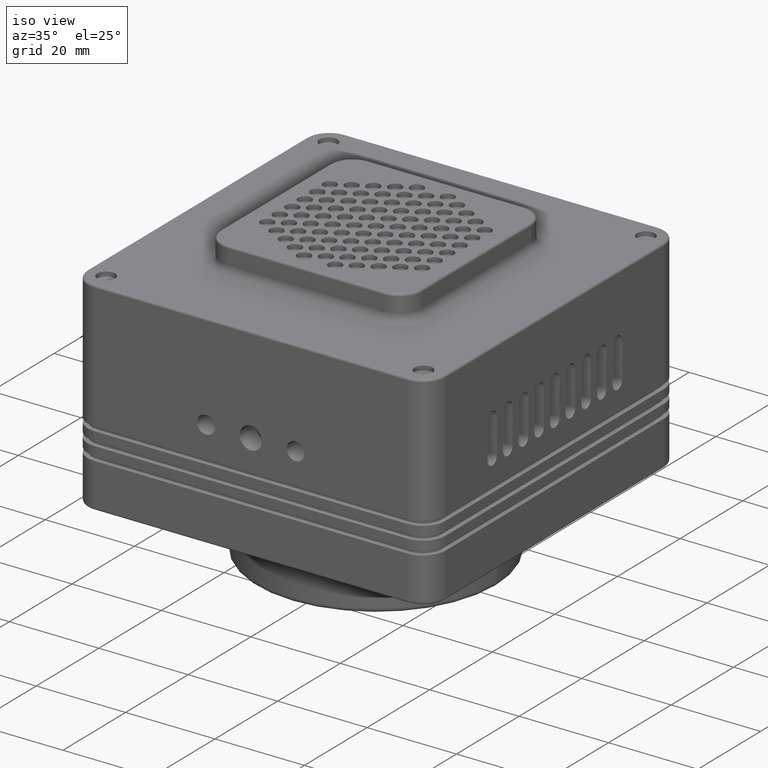
[diagram: clean part render]
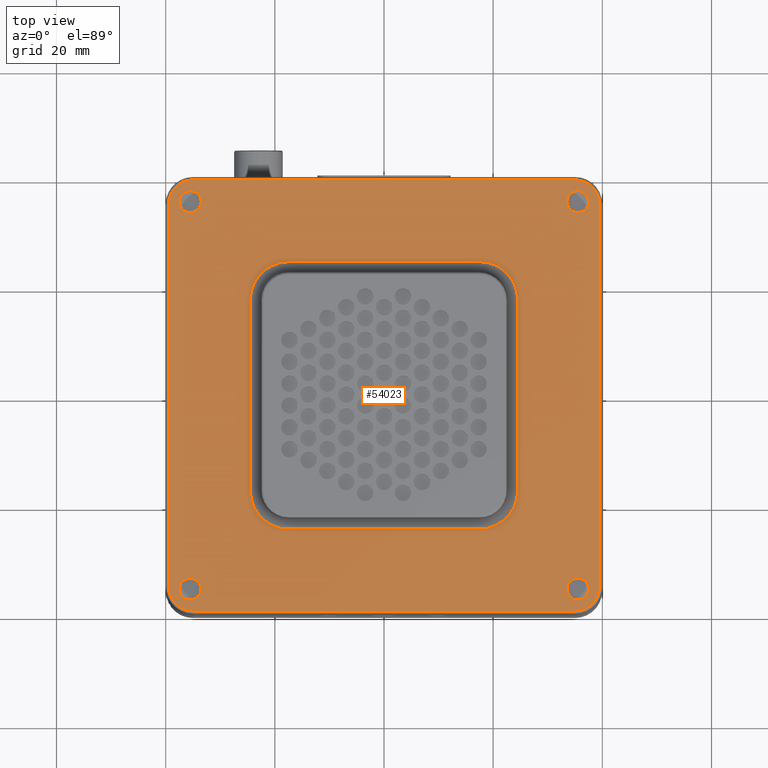
[diagram: tour spotlight — one face highlighted and labeled with its STEP entity id]
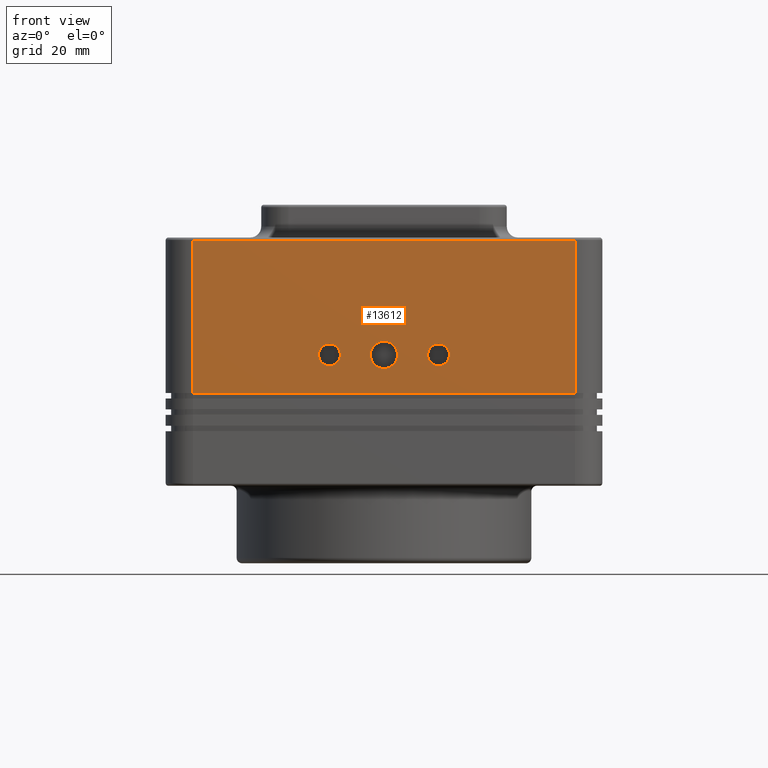
[diagram: tour spotlight — one face highlighted and labeled with its STEP entity id]
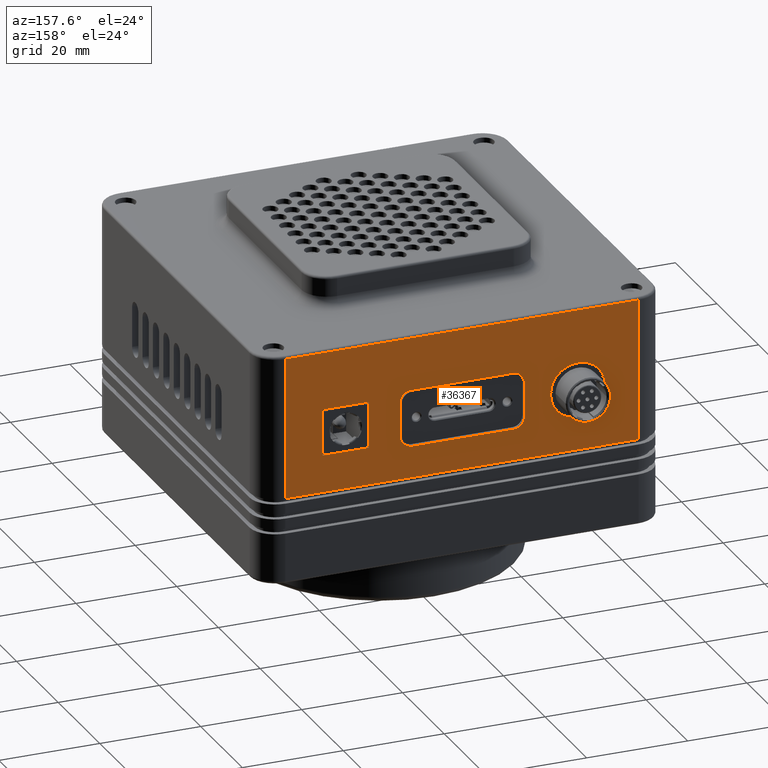
[diagram: tour spotlight — one face highlighted and labeled with its STEP entity id]
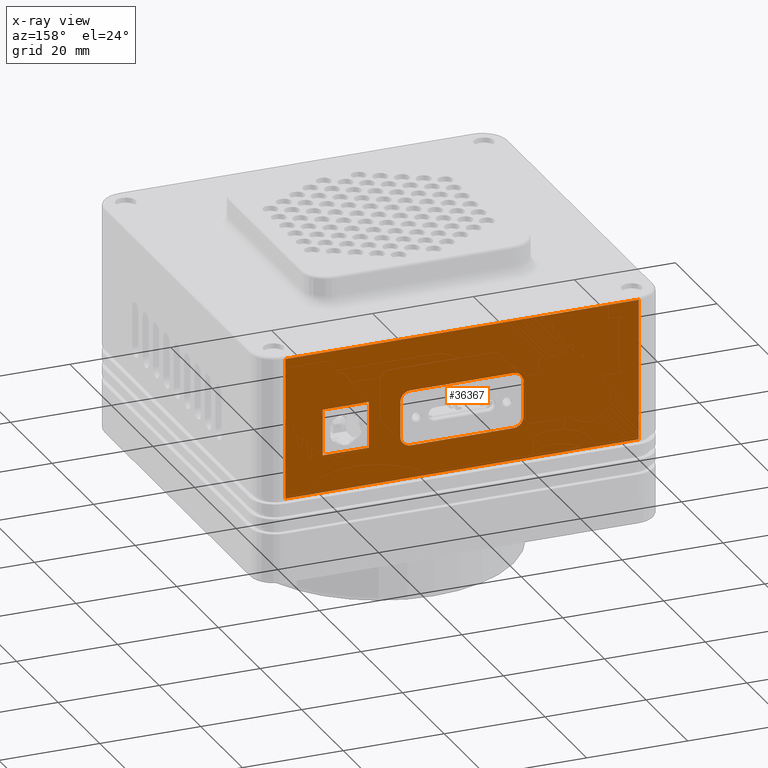
[diagram: x-ray of the same camera — body ghosted, this tour face saturated]
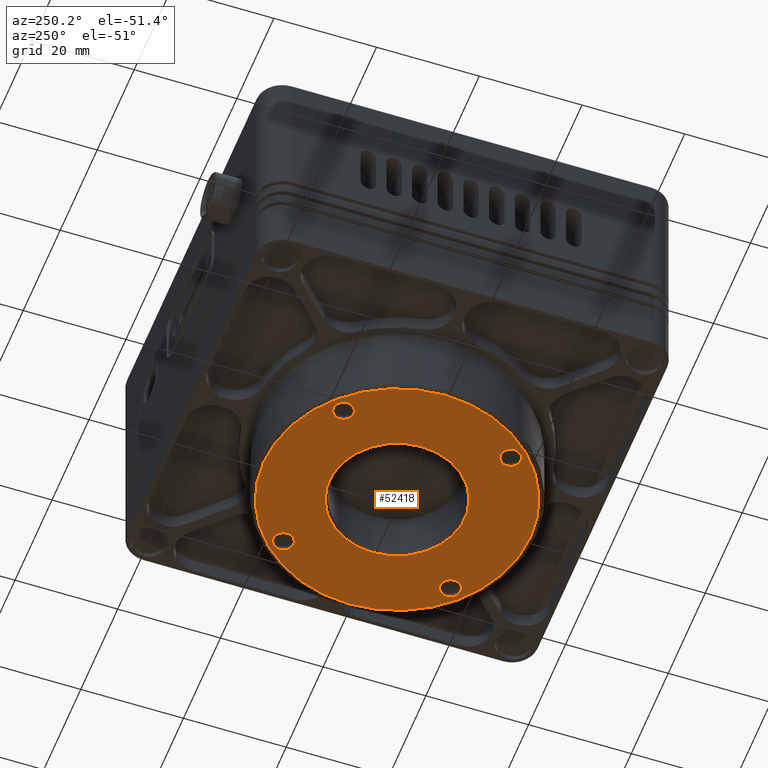
[diagram: tour spotlight — one face highlighted and labeled with its STEP entity id]
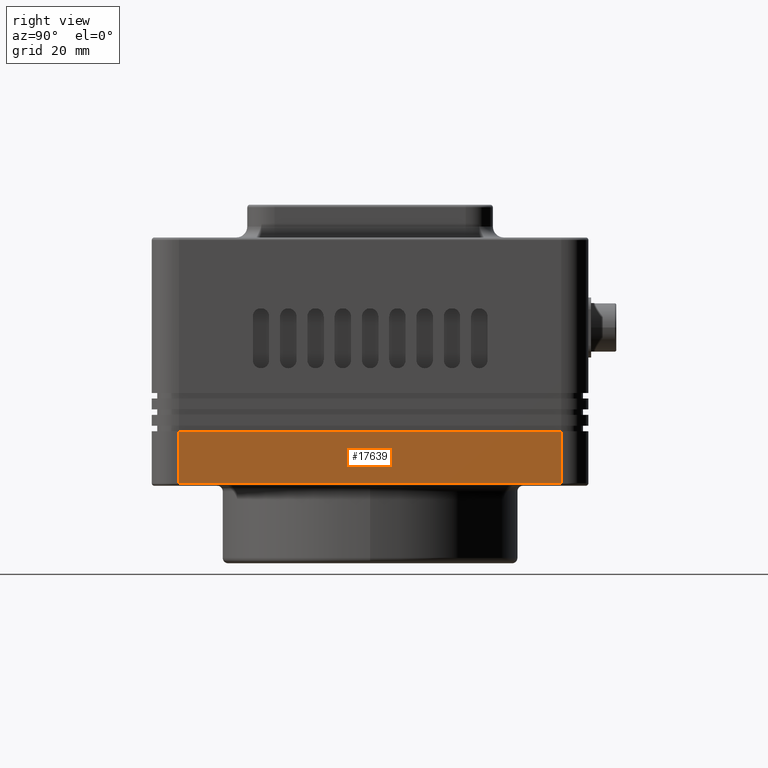
[diagram: tour spotlight — one face highlighted and labeled with its STEP entity id]
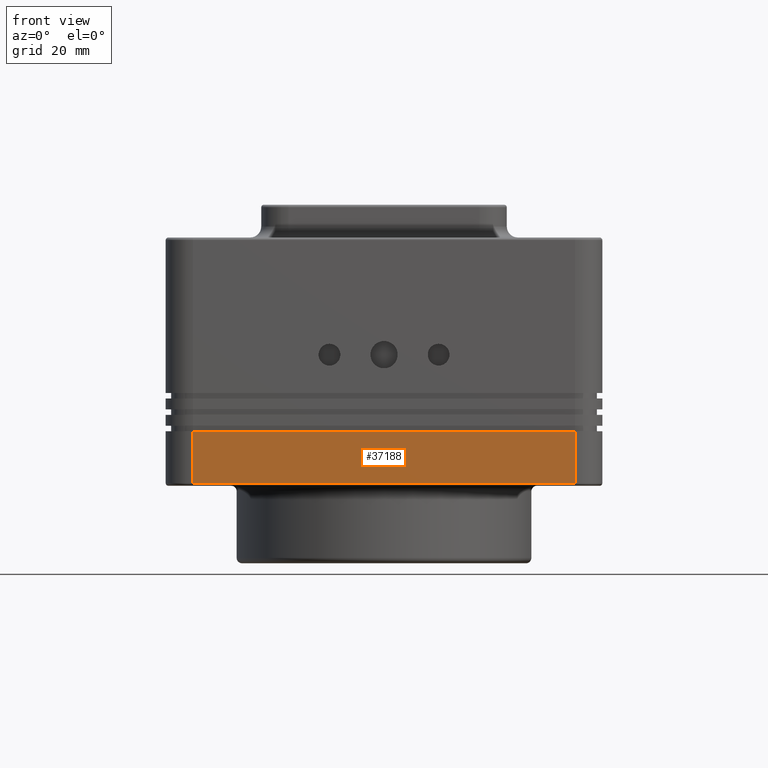
[diagram: tour spotlight — one face highlighted and labeled with its STEP entity id]
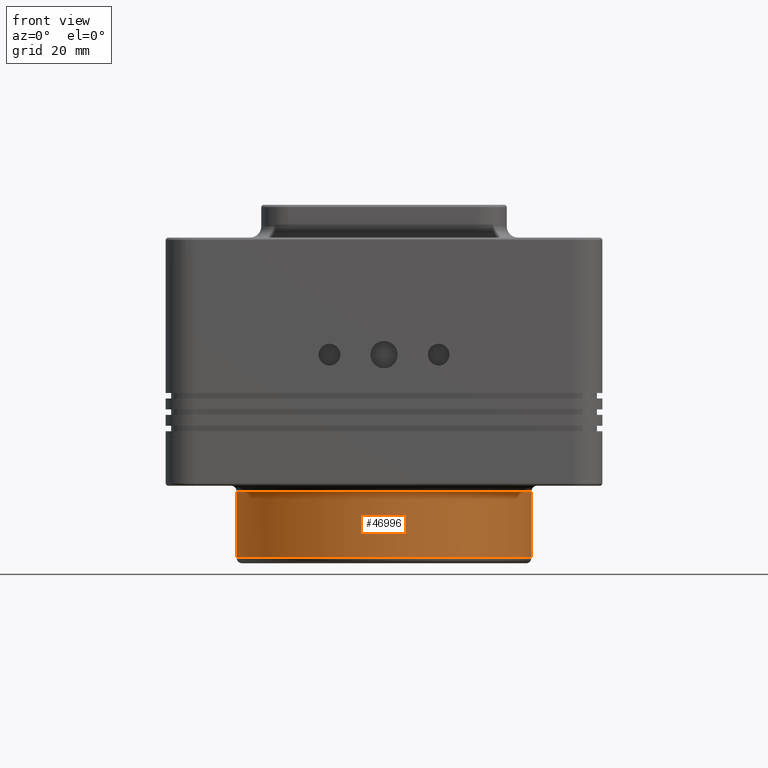
[diagram: tour spotlight — one face highlighted and labeled with its STEP entity id]
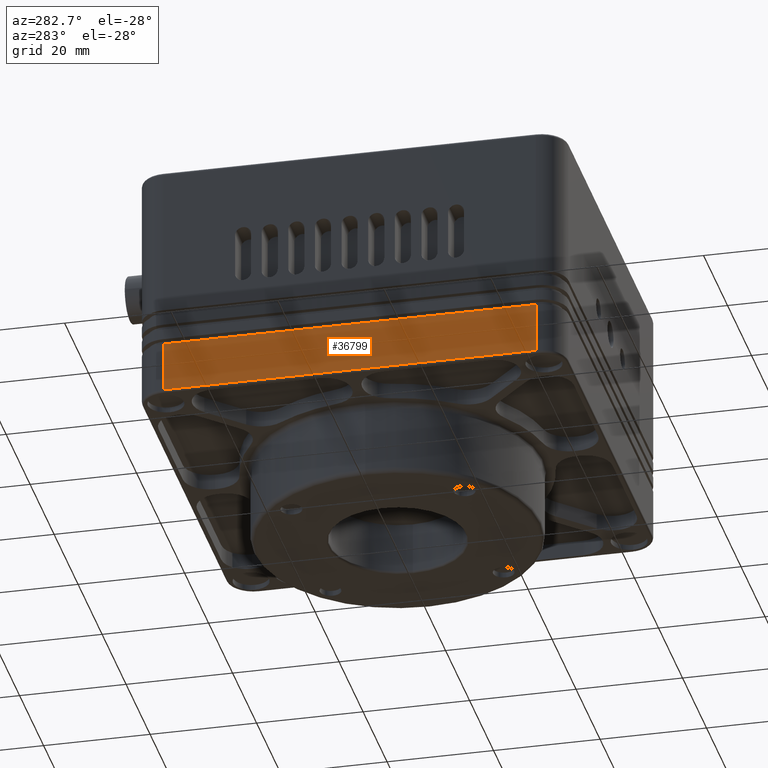
[diagram: tour spotlight — one face highlighted and labeled with its STEP entity id]
A machine part: a face-by-face anatomy tour. The part has 1748 B-rep faces; the first image is the clean iso view, then the 8 largest visible faces are spotlighted one at a time (largest first), each with its STEP entity span.

Face 1 — top view, entity #54023. In plain terms, the highlighted planar face has unit normal (0, 0, 1).
Definition (entity closure, byte-faithful):
#229 = VERTEX_POINT ( 'NONE', #41043 ) ;
#428 = VERTEX_POINT ( 'NONE', #44786 ) ;
#545 = AXIS2_PLACEMENT_3D ( 'NONE', #43281, #26206, #22328 ) ;
#646 = EDGE_CURVE ( 'NONE', #29597, #20946, #50154, .T. ) ;
#647 = FACE_OUTER_BOUND ( 'NONE', #21140, .T. ) ;
#1187 = CARTESIAN_POINT ( 'NONE',  ( 17.50000000000000000, 24.50000000000000000, 29.69999999999999929 ) ) ;
#1680 = DIRECTION ( 'NONE',  ( 1.000000000000000000, 0.000000000000000000, 0.000000000000000000 ) ) ;
#1906 = DIRECTION ( 'NONE',  ( 0.000000000000000000, 0.000000000000000000, -1.000000000000000000 ) ) ;
#2229 = CARTESIAN_POINT ( 'NONE',  ( 35.50000000000000000, -35.50000000000000000, 29.69999999999999929 ) ) ;
#2301 = CARTESIAN_POINT ( 'NONE',  ( 33.49999999999999289, -35.50000000000000000, 29.69999999999999929 ) ) ;
#2447 = CARTESIAN_POINT ( 'NONE',  ( -17.50000000000000000, 17.50000000000000000, 29.69999999999999929 ) ) ;
#2722 = AXIS2_PLACEMENT_3D ( 'NONE', #18342, #26382, #13370 ) ;
#2862 = LINE ( 'NONE', #32975, #50267 ) ;
#3115 = CARTESIAN_POINT ( 'NONE',  ( 3.777842236571714893E-15, -24.50000000000000000, 29.69999999999999929 ) ) ;
#3423 = ORIENTED_EDGE ( 'NONE', *, *, #30222, .T. ) ;
#3899 = DIRECTION ( 'NONE',  ( 1.000000000000000000, 0.000000000000000000, 0.000000000000000000 ) ) ;
#3972 = CARTESIAN_POINT ( 'NONE',  ( -35.50000000000000000, 35.50000000000000000, 29.69999999999999929 ) ) ;
#4112 = CARTESIAN_POINT ( 'NONE',  ( -33.49999999999999289, 35.50000000000000000, 29.69999999999999929 ) ) ;
#4270 = CARTESIAN_POINT ( 'NONE',  ( 35.00000000000000000, -39.50000000000000000, 29.69999999999999929 ) ) ;
#4388 = EDGE_CURVE ( 'NONE', #12948, #23084, #12427, .T. ) ;
#4507 = VERTEX_POINT ( 'NONE', #2301 ) ;
#4508 = EDGE_CURVE ( 'NONE', #40305, #229, #49479, .T. ) ;
#4692 = EDGE_CURVE ( 'NONE', #26137, #12103, #41602, .T. ) ;
#4754 = EDGE_CURVE ( 'NONE', #39048, #40305, #20445, .T. ) ;
#4827 = PLANE ( 'NONE',  #25287 ) ;
#5031 = CARTESIAN_POINT ( 'NONE',  ( 17.50000000000000000, -17.50000000000000000, 29.69999999999999929 ) ) ;
#5089 = FACE_BOUND ( 'NONE', #30883, .T. ) ;
#5097 = CIRCLE ( 'NONE', #46503, 2.000000000000001776 ) ;
#5511 = CIRCLE ( 'NONE', #46911, 4.500000000000000888 ) ;
#5536 = DIRECTION ( 'NONE',  ( 1.000000000000000000, 9.912705577010326536E-16, 0.000000000000000000 ) ) ;
#5975 = VERTEX_POINT ( 'NONE', #4270 ) ;
#6097 = AXIS2_PLACEMENT_3D ( 'NONE', #2447, #1906, #5536 ) ;
#7212 = EDGE_CURVE ( 'NONE', #21240, #26137, #50653, .T. ) ;
#7445 = CARTESIAN_POINT ( 'NONE',  ( 33.49999999999999289, 35.50000000000000000, 29.69999999999999929 ) ) ;
#8168 = VERTEX_POINT ( 'NONE', #43900 ) ;
#8238 = DIRECTION ( 'NONE',  ( 0.000000000000000000, 0.000000000000000000, 1.000000000000000000 ) ) ;
#8430 = CARTESIAN_POINT ( 'NONE',  ( 39.50000000000000000, 0.000000000000000000, 29.69999999999999929 ) ) ;
#8981 = DIRECTION ( 'NONE',  ( 0.000000000000000000, 0.000000000000000000, 1.000000000000000000 ) ) ;
#9806 = CARTESIAN_POINT ( 'NONE',  ( 37.50000000000000000, -35.50000000000000000, 29.69999999999999929 ) ) ;
#9898 = AXIS2_PLACEMENT_3D ( 'NONE', #37364, #12213, #25770 ) ;
#10625 = AXIS2_PLACEMENT_3D ( 'NONE', #22950, #35103, #51893 ) ;
#11425 = DIRECTION ( 'NONE',  ( 1.000000000000000000, 0.000000000000000000, 0.000000000000000000 ) ) ;
#11794 = VERTEX_POINT ( 'NONE', #50716 ) ;
#12025 = CIRCLE ( 'NONE', #545, 4.499999999999997335 ) ;
#12103 = VERTEX_POINT ( 'NONE', #52364 ) ;
#12213 = DIRECTION ( 'NONE',  ( 0.000000000000000000, 0.000000000000000000, 1.000000000000000000 ) ) ;
#12427 = CIRCLE ( 'NONE', #2722, 4.500000000000000888 ) ;
#12654 = CARTESIAN_POINT ( 'NONE',  ( -39.50000000000000000, -35.00000000000000000, 29.69999999999999929 ) ) ;
#12694 = DIRECTION ( 'NONE',  ( 0.000000000000000000, 0.000000000000000000, 1.000000000000000000 ) ) ;
#12803 = DIRECTION ( 'NONE',  ( 0.000000000000000000, 0.000000000000000000, 1.000000000000000000 ) ) ;
#12948 = VERTEX_POINT ( 'NONE', #12654 ) ;
#13092 = EDGE_CURVE ( 'NONE', #5975, #21240, #12025, .T. ) ;
#13370 = DIRECTION ( 'NONE',  ( 1.000000000000000000, 0.000000000000000000, 0.000000000000000000 ) ) ;
#13541 = VERTEX_POINT ( 'NONE', #45366 ) ;
#13964 = CARTESIAN_POINT ( 'NONE',  ( -35.00000000000000000, 35.00000000000000000, 29.69999999999999929 ) ) ;
#14030 = ORIENTED_EDGE ( 'NONE', *, *, #7212, .T. ) ;
#14144 = AXIS2_PLACEMENT_3D ( 'NONE', #41227, #32691, #11425 ) ;
#14393 = ORIENTED_EDGE ( 'NONE', *, *, #36000, .T. ) ;
#14415 = DIRECTION ( 'NONE',  ( 1.000000000000000000, 0.000000000000000000, 0.000000000000000000 ) ) ;
#15535 = DIRECTION ( 'NONE',  ( -1.000000000000000000, -1.541976423090494894E-16, 0.000000000000000000 ) ) ;
#15633 = EDGE_LOOP ( 'NONE', ( #24980, #33302 ) ) ;
#16318 = CARTESIAN_POINT ( 'NONE',  ( -35.50000000000000000, -35.50000000000000000, 29.69999999999999929 ) ) ;
#16842 = DIRECTION ( 'NONE',  ( 0.000000000000000000, 0.000000000000000000, 1.000000000000000000 ) ) ;
#16851 = VERTEX_POINT ( 'NONE', #9806 ) ;
#17482 = ORIENTED_EDGE ( 'NONE', *, *, #4754, .T. ) ;
#17497 = FACE_BOUND ( 'NONE', #44485, .T. ) ;
#17527 = CIRCLE ( 'NONE', #6097, 6.999999999999999112 ) ;
#17959 = VERTEX_POINT ( 'NONE', #37757 ) ;
#18164 = CARTESIAN_POINT ( 'NONE',  ( 17.50000000000000000, 17.50000000000000000, 29.69999999999999929 ) ) ;
#18287 = CARTESIAN_POINT ( 'NONE',  ( 0.000000000000000000, 24.50000000000000000, 29.69999999999999929 ) ) ;
#18342 = CARTESIAN_POINT ( 'NONE',  ( -35.00000000000000000, -35.00000000000000000, 29.69999999999999929 ) ) ;
#18412 = CARTESIAN_POINT ( 'NONE',  ( -17.50000000000000000, -17.50000000000000000, 29.69999999999999929 ) ) ;
#18810 = DIRECTION ( 'NONE',  ( 0.000000000000000000, 0.000000000000000000, 1.000000000000000000 ) ) ;
#19729 = DIRECTION ( 'NONE',  ( 0.000000000000000000, -1.000000000000000000, 0.000000000000000000 ) ) ;
#20445 = CIRCLE ( 'NONE', #31078, 6.999999999999999112 ) ;
#20488 = VERTEX_POINT ( 'NONE', #27363 ) ;
#20946 = VERTEX_POINT ( 'NONE', #31958 ) ;
#21132 = DIRECTION ( 'NONE',  ( 0.000000000000000000, 1.000000000000000000, 0.000000000000000000 ) ) ;
#21140 = EDGE_LOOP ( 'NONE', ( #14393, #53760, #46135, #45735, #3423, #38877, #14030, #39706 ) ) ;
#21240 = VERTEX_POINT ( 'NONE', #44624 ) ;
#21664 = DIRECTION ( 'NONE',  ( 1.000000000000000000, 0.000000000000000000, 0.000000000000000000 ) ) ;
#21970 = CARTESIAN_POINT ( 'NONE',  ( 24.50000000000000000, 0.000000000000000000, 29.69999999999999929 ) ) ;
#22328 = DIRECTION ( 'NONE',  ( 1.000000000000000000, 0.000000000000000000, 0.000000000000000000 ) ) ;
#22680 = ORIENTED_EDGE ( 'NONE', *, *, #41531, .T. ) ;
#22800 = VECTOR ( 'NONE', #43500, 1000.000000000000000 ) ;
#22881 = DIRECTION ( 'NONE',  ( 1.000000000000000000, 2.478176394252581732E-15, 0.000000000000000000 ) ) ;
#22950 = CARTESIAN_POINT ( 'NONE',  ( 35.50000000000000000, 35.50000000000000000, 29.69999999999999929 ) ) ;
#22989 = CARTESIAN_POINT ( 'NONE',  ( 0.000000000000000000, 39.50000000000000000, 29.69999999999999929 ) ) ;
#23084 = VERTEX_POINT ( 'NONE', #45163 ) ;
#23350 = EDGE_CURVE ( 'NONE', #13541, #39389, #43957, .T. ) ;
#23462 = ORIENTED_EDGE ( 'NONE', *, *, #26102, .T. ) ;
#23730 = EDGE_CURVE ( 'NONE', #24938, #13541, #17527, .T. ) ;
#23840 = LINE ( 'NONE', #49201, #52125 ) ;
#23961 = ORIENTED_EDGE ( 'NONE', *, *, #37275, .F. ) ;
#24018 = ORIENTED_EDGE ( 'NONE', *, *, #646, .F. ) ;
#24292 = DIRECTION ( 'NONE',  ( 0.000000000000000000, 1.000000000000000000, 0.000000000000000000 ) ) ;
#24727 = CIRCLE ( 'NONE', #10625, 2.000000000000001776 ) ;
#24938 = VERTEX_POINT ( 'NONE', #45293 ) ;
#24973 = AXIS2_PLACEMENT_3D ( 'NONE', #18412, #27012, #52352 ) ;
#24980 = ORIENTED_EDGE ( 'NONE', *, *, #43291, .F. ) ;
#25007 = FACE_BOUND ( 'NONE', #30758, .T. ) ;
#25287 = AXIS2_PLACEMENT_3D ( 'NONE', #50894, #46493, #25842 ) ;
#25398 = EDGE_CURVE ( 'NONE', #20946, #29597, #40649, .T. ) ;
#25770 = DIRECTION ( 'NONE',  ( 1.000000000000000000, 0.000000000000000000, 0.000000000000000000 ) ) ;
#25842 = DIRECTION ( 'NONE',  ( 1.000000000000000000, 0.000000000000000000, 0.000000000000000000 ) ) ;
#26102 = EDGE_CURVE ( 'NONE', #11794, #24938, #28168, .T. ) ;
#26114 = FACE_BOUND ( 'NONE', #30460, .T. ) ;
#26137 = VERTEX_POINT ( 'NONE', #37514 ) ;
#26206 = DIRECTION ( 'NONE',  ( 0.000000000000000000, 0.000000000000000000, 1.000000000000000000 ) ) ;
#26372 = EDGE_CURVE ( 'NONE', #39389, #52192, #41575, .T. ) ;
#26382 = DIRECTION ( 'NONE',  ( 0.000000000000000000, 0.000000000000000000, 1.000000000000000000 ) ) ;
#26709 = DIRECTION ( 'NONE',  ( 0.000000000000000000, 0.000000000000000000, 1.000000000000000000 ) ) ;
#27012 = DIRECTION ( 'NONE',  ( 0.000000000000000000, 0.000000000000000000, -1.000000000000000000 ) ) ;
#27041 = ORIENTED_EDGE ( 'NONE', *, *, #4508, .T. ) ;
#27363 = CARTESIAN_POINT ( 'NONE',  ( -35.00000000000000000, 39.50000000000000000, 29.69999999999999929 ) ) ;
#27439 = EDGE_CURVE ( 'NONE', #27584, #428, #24727, .T. ) ;
#27576 = CIRCLE ( 'NONE', #51307, 2.000000000000001776 ) ;
#27584 = VERTEX_POINT ( 'NONE', #7445 ) ;
#28168 = LINE ( 'NONE', #45247, #52096 ) ;
#28604 = DIRECTION ( 'NONE',  ( 1.000000000000000000, 0.000000000000000000, 0.000000000000000000 ) ) ;
#29237 = CARTESIAN_POINT ( 'NONE',  ( -35.50000000000000000, 35.50000000000000000, 29.69999999999999929 ) ) ;
#29559 = DIRECTION ( 'NONE',  ( 1.000000000000000000, 0.000000000000000000, 0.000000000000000000 ) ) ;
#29597 = VERTEX_POINT ( 'NONE', #32593 ) ;
#29685 = FACE_BOUND ( 'NONE', #15633, .T. ) ;
#30222 = EDGE_CURVE ( 'NONE', #23084, #5975, #23840, .T. ) ;
#30460 = EDGE_LOOP ( 'NONE', ( #31655, #33262, #41123, #49438, #17482, #27041, #22680, #23462 ) ) ;
#30559 = EDGE_CURVE ( 'NONE', #4507, #16851, #38064, .T. ) ;
#30758 = EDGE_LOOP ( 'NONE', ( #48228, #36675 ) ) ;
#30883 = EDGE_LOOP ( 'NONE', ( #35330, #24018 ) ) ;
#31002 = DIRECTION ( 'NONE',  ( 0.000000000000000000, 0.000000000000000000, -1.000000000000000000 ) ) ;
#31078 = AXIS2_PLACEMENT_3D ( 'NONE', #5031, #31002, #1680 ) ;
#31655 = ORIENTED_EDGE ( 'NONE', *, *, #23730, .T. ) ;
#31952 = VECTOR ( 'NONE', #15535, 1000.000000000000000 ) ;
#31958 = CARTESIAN_POINT ( 'NONE',  ( -33.49999999999999289, -35.50000000000000000, 29.69999999999999929 ) ) ;
#32088 = EDGE_CURVE ( 'NONE', #16851, #4507, #36128, .T. ) ;
#32593 = CARTESIAN_POINT ( 'NONE',  ( -37.50000000000000000, -35.50000000000000000, 29.69999999999999929 ) ) ;
#32691 = DIRECTION ( 'NONE',  ( 0.000000000000000000, 0.000000000000000000, 1.000000000000000000 ) ) ;
#32975 = CARTESIAN_POINT ( 'NONE',  ( -39.50000000000000000, 0.000000000000000000, 29.69999999999999929 ) ) ;
#33262 = ORIENTED_EDGE ( 'NONE', *, *, #23350, .T. ) ;
#33302 = ORIENTED_EDGE ( 'NONE', *, *, #27439, .F. ) ;
#34597 = AXIS2_PLACEMENT_3D ( 'NONE', #2229, #18810, #48071 ) ;
#34687 = LINE ( 'NONE', #21970, #22800 ) ;
#34881 = LINE ( 'NONE', #22989, #43852 ) ;
#35103 = DIRECTION ( 'NONE',  ( 0.000000000000000000, 0.000000000000000000, 1.000000000000000000 ) ) ;
#35330 = ORIENTED_EDGE ( 'NONE', *, *, #25398, .F. ) ;
#35593 = CIRCLE ( 'NONE', #24973, 6.999999999999999112 ) ;
#36000 = EDGE_CURVE ( 'NONE', #12103, #20488, #34881, .T. ) ;
#36060 = VECTOR ( 'NONE', #14415, 1000.000000000000000 ) ;
#36128 = CIRCLE ( 'NONE', #54556, 2.000000000000001776 ) ;
#36675 = ORIENTED_EDGE ( 'NONE', *, *, #30559, .F. ) ;
#37275 = EDGE_CURVE ( 'NONE', #52127, #8168, #5097, .T. ) ;
#37364 = CARTESIAN_POINT ( 'NONE',  ( 35.00000000000000000, 35.00000000000000000, 29.69999999999999929 ) ) ;
#37514 = CARTESIAN_POINT ( 'NONE',  ( 39.50000000000000000, 35.00000000000000000, 29.69999999999999929 ) ) ;
#37556 = VECTOR ( 'NONE', #21132, 1000.000000000000000 ) ;
#37757 = CARTESIAN_POINT ( 'NONE',  ( -39.50000000000000000, 35.00000000000000000, 29.69999999999999929 ) ) ;
#37874 = EDGE_CURVE ( 'NONE', #52192, #39048, #34687, .T. ) ;
#38064 = CIRCLE ( 'NONE', #34597, 2.000000000000001776 ) ;
#38326 = DIRECTION ( 'NONE',  ( 1.000000000000000000, 0.000000000000000000, 0.000000000000000000 ) ) ;
#38872 = AXIS2_PLACEMENT_3D ( 'NONE', #46515, #8981, #42672 ) ;
#38877 = ORIENTED_EDGE ( 'NONE', *, *, #13092, .T. ) ;
#39048 = VERTEX_POINT ( 'NONE', #52307 ) ;
#39389 = VERTEX_POINT ( 'NONE', #1187 ) ;
#39706 = ORIENTED_EDGE ( 'NONE', *, *, #4692, .T. ) ;
#40305 = VERTEX_POINT ( 'NONE', #42990 ) ;
#40489 = AXIS2_PLACEMENT_3D ( 'NONE', #16318, #16842, #3899 ) ;
#40649 = CIRCLE ( 'NONE', #38872, 2.000000000000001776 ) ;
#41043 = CARTESIAN_POINT ( 'NONE',  ( -17.50000000000000000, -24.50000000000000000, 29.69999999999999929 ) ) ;
#41123 = ORIENTED_EDGE ( 'NONE', *, *, #26372, .T. ) ;
#41227 = CARTESIAN_POINT ( 'NONE',  ( 35.50000000000000000, 35.50000000000000000, 29.69999999999999929 ) ) ;
#41531 = EDGE_CURVE ( 'NONE', #229, #11794, #35593, .T. ) ;
#41575 = CIRCLE ( 'NONE', #45091, 6.999999999999999112 ) ;
#41602 = CIRCLE ( 'NONE', #9898, 4.499999999999997335 ) ;
#41954 = CARTESIAN_POINT ( 'NONE',  ( 35.50000000000000000, -35.50000000000000000, 29.69999999999999929 ) ) ;
#42672 = DIRECTION ( 'NONE',  ( 1.000000000000000000, 0.000000000000000000, 0.000000000000000000 ) ) ;
#42990 = CARTESIAN_POINT ( 'NONE',  ( 17.50000000000000000, -24.50000000000000000, 29.69999999999999929 ) ) ;
#43271 = EDGE_CURVE ( 'NONE', #17959, #12948, #2862, .T. ) ;
#43281 = CARTESIAN_POINT ( 'NONE',  ( 35.00000000000000000, -35.00000000000000000, 29.69999999999999929 ) ) ;
#43291 = EDGE_CURVE ( 'NONE', #428, #27584, #53815, .T. ) ;
#43500 = DIRECTION ( 'NONE',  ( 0.000000000000000000, -1.000000000000000000, 0.000000000000000000 ) ) ;
#43852 = VECTOR ( 'NONE', #51667, 1000.000000000000000 ) ;
#43900 = CARTESIAN_POINT ( 'NONE',  ( -37.50000000000000000, 35.50000000000000000, 29.69999999999999929 ) ) ;
#43957 = LINE ( 'NONE', #18287, #36060 ) ;
#44485 = EDGE_LOOP ( 'NONE', ( #23961, #51632 ) ) ;
#44624 = CARTESIAN_POINT ( 'NONE',  ( 39.50000000000000000, -35.00000000000000000, 29.69999999999999929 ) ) ;
#44786 = CARTESIAN_POINT ( 'NONE',  ( 37.50000000000000000, 35.50000000000000000, 29.69999999999999929 ) ) ;
#45091 = AXIS2_PLACEMENT_3D ( 'NONE', #18164, #51821, #22881 ) ;
#45163 = CARTESIAN_POINT ( 'NONE',  ( -35.00000000000000000, -39.50000000000000000, 29.69999999999999929 ) ) ;
#45247 = CARTESIAN_POINT ( 'NONE',  ( -24.50000000000000000, 0.000000000000000000, 29.69999999999999929 ) ) ;
#45293 = CARTESIAN_POINT ( 'NONE',  ( -24.50000000000000000, 17.50000000000000000, 29.69999999999999929 ) ) ;
#45366 = CARTESIAN_POINT ( 'NONE',  ( -17.50000000000000000, 24.50000000000000000, 29.69999999999999929 ) ) ;
#45735 = ORIENTED_EDGE ( 'NONE', *, *, #4388, .T. ) ;
#46135 = ORIENTED_EDGE ( 'NONE', *, *, #43271, .T. ) ;
#46493 = DIRECTION ( 'NONE',  ( 0.000000000000000000, 0.000000000000000000, 1.000000000000000000 ) ) ;
#46503 = AXIS2_PLACEMENT_3D ( 'NONE', #29237, #8238, #38326 ) ;
#46515 = CARTESIAN_POINT ( 'NONE',  ( -35.50000000000000000, -35.50000000000000000, 29.69999999999999929 ) ) ;
#46911 = AXIS2_PLACEMENT_3D ( 'NONE', #13964, #26709, #28604 ) ;
#47993 = CARTESIAN_POINT ( 'NONE',  ( 24.50000000000000000, 17.50000000000000000, 29.69999999999999929 ) ) ;
#48071 = DIRECTION ( 'NONE',  ( 1.000000000000000000, 0.000000000000000000, 0.000000000000000000 ) ) ;
#48228 = ORIENTED_EDGE ( 'NONE', *, *, #32088, .F. ) ;
#49201 = CARTESIAN_POINT ( 'NONE',  ( 0.000000000000000000, -39.50000000000000000, 29.69999999999999929 ) ) ;
#49438 = ORIENTED_EDGE ( 'NONE', *, *, #37874, .T. ) ;
#49479 = LINE ( 'NONE', #3115, #31952 ) ;
#49556 = EDGE_CURVE ( 'NONE', #20488, #17959, #5511, .T. ) ;
#49691 = EDGE_CURVE ( 'NONE', #8168, #52127, #27576, .T. ) ;
#50154 = CIRCLE ( 'NONE', #40489, 2.000000000000001776 ) ;
#50267 = VECTOR ( 'NONE', #19729, 1000.000000000000000 ) ;
#50653 = LINE ( 'NONE', #8430, #37556 ) ;
#50716 = CARTESIAN_POINT ( 'NONE',  ( -24.50000000000000000, -17.50000000000000000, 29.69999999999999929 ) ) ;
#50894 = CARTESIAN_POINT ( 'NONE',  ( 0.000000000000000000, 0.000000000000000000, 29.69999999999999929 ) ) ;
#51307 = AXIS2_PLACEMENT_3D ( 'NONE', #3972, #12803, #21664 ) ;
#51632 = ORIENTED_EDGE ( 'NONE', *, *, #49691, .F. ) ;
#51667 = DIRECTION ( 'NONE',  ( -1.000000000000000000, 0.000000000000000000, 0.000000000000000000 ) ) ;
#51821 = DIRECTION ( 'NONE',  ( 0.000000000000000000, 0.000000000000000000, -1.000000000000000000 ) ) ;
#51893 = DIRECTION ( 'NONE',  ( 1.000000000000000000, 0.000000000000000000, 0.000000000000000000 ) ) ;
#52096 = VECTOR ( 'NONE', #24292, 1000.000000000000000 ) ;
#52125 = VECTOR ( 'NONE', #52795, 1000.000000000000000 ) ;
#52127 = VERTEX_POINT ( 'NONE', #4112 ) ;
#52192 = VERTEX_POINT ( 'NONE', #47993 ) ;
#52307 = CARTESIAN_POINT ( 'NONE',  ( 24.50000000000000000, -17.50000000000000000, 29.69999999999999929 ) ) ;
#52352 = DIRECTION ( 'NONE',  ( 1.000000000000000000, 0.000000000000000000, 0.000000000000000000 ) ) ;
#52364 = CARTESIAN_POINT ( 'NONE',  ( 35.00000000000000000, 39.50000000000000000, 29.69999999999999929 ) ) ;
#52795 = DIRECTION ( 'NONE',  ( 1.000000000000000000, 0.000000000000000000, 0.000000000000000000 ) ) ;
#53760 = ORIENTED_EDGE ( 'NONE', *, *, #49556, .T. ) ;
#53815 = CIRCLE ( 'NONE', #14144, 2.000000000000001776 ) ;
#54023 = ADVANCED_FACE ( 'NONE', ( #26114, #17497, #29685, #25007, #5089, #647 ), #4827, .T. ) ;
#54556 = AXIS2_PLACEMENT_3D ( 'NONE', #41954, #12694, #29559 ) ;

Face 2 — front view, entity #13612. In plain terms, the highlighted planar face has unit normal (0, -1, 0).
Definition (entity closure, byte-faithful):
#1590 = VERTEX_POINT ( 'NONE', #12855 ) ;
#2041 = VECTOR ( 'NONE', #37010, 1000.000000000000000 ) ;
#2098 = DIRECTION ( 'NONE',  ( 0.000000000000000000, 0.000000000000000000, -1.000000000000000000 ) ) ;
#2565 = CARTESIAN_POINT ( 'NONE',  ( -55.00000000000000000, -40.00000000000000000, 0.000000000000000000 ) ) ;
#2896 = EDGE_CURVE ( 'NONE', #14252, #48972, #52606, .T. ) ;
#3113 = DIRECTION ( 'NONE',  ( 0.000000000000000000, -1.000000000000000000, 0.000000000000000000 ) ) ;
#3632 = CARTESIAN_POINT ( 'NONE',  ( 35.00000000000000000, -40.00000000000000000, 0.000000000000000000 ) ) ;
#3670 = VERTEX_POINT ( 'NONE', #43937 ) ;
#3708 = CARTESIAN_POINT ( 'NONE',  ( -10.00000000000000000, -40.00000000000000000, 10.20000000000000107 ) ) ;
#4529 = CARTESIAN_POINT ( 'NONE',  ( -10.00000000000000000, -40.00000000000000000, 8.200000000000001066 ) ) ;
#5209 = CARTESIAN_POINT ( 'NONE',  ( 10.00000000000000000, -40.00000000000000000, 8.200000000000001066 ) ) ;
#6259 = CARTESIAN_POINT ( 'NONE',  ( -10.00000000000000000, -40.00000000000000000, 8.200000000000001066 ) ) ;
#6999 = CARTESIAN_POINT ( 'NONE',  ( 10.00000000000000000, -40.00000000000000000, 6.200000000000001066 ) ) ;
#7273 = FACE_OUTER_BOUND ( 'NONE', #35252, .T. ) ;
#7333 = DIRECTION ( 'NONE',  ( 0.000000000000000000, 0.000000000000000000, -1.000000000000000000 ) ) ;
#7510 = ORIENTED_EDGE ( 'NONE', *, *, #34006, .F. ) ;
#8683 = CARTESIAN_POINT ( 'NONE',  ( -55.00000000000000000, -40.00000000000000000, 29.19999999999999929 ) ) ;
#8867 = EDGE_CURVE ( 'NONE', #53979, #3670, #11773, .T. ) ;
#9094 = DIRECTION ( 'NONE',  ( 0.000000000000000000, 0.000000000000000000, -1.000000000000000000 ) ) ;
#9287 = ORIENTED_EDGE ( 'NONE', *, *, #33098, .F. ) ;
#11182 = AXIS2_PLACEMENT_3D ( 'NONE', #15347, #15062, #7333 ) ;
#11773 = CIRCLE ( 'NONE', #52311, 2.500000000000000444 ) ;
#12855 = CARTESIAN_POINT ( 'NONE',  ( 35.00000000000000000, -40.00000000000000000, 29.19999999999999929 ) ) ;
#13612 = ADVANCED_FACE ( 'NONE', ( #27477, #27759, #40406, #7273 ), #44283, .T. ) ;
#14093 = ORIENTED_EDGE ( 'NONE', *, *, #40110, .F. ) ;
#14252 = VERTEX_POINT ( 'NONE', #6999 ) ;
#14714 = VECTOR ( 'NONE', #42915, 1000.000000000000000 ) ;
#15062 = DIRECTION ( 'NONE',  ( 0.000000000000000000, -1.000000000000000000, 0.000000000000000000 ) ) ;
#15113 = AXIS2_PLACEMENT_3D ( 'NONE', #52892, #35571, #31691 ) ;
#15347 = CARTESIAN_POINT ( 'NONE',  ( 10.00000000000000000, -40.00000000000000000, 8.200000000000001066 ) ) ;
#16036 = ORIENTED_EDGE ( 'NONE', *, *, #54032, .T. ) ;
#16091 = CARTESIAN_POINT ( 'NONE',  ( -35.00000000000000000, -40.00000000000000000, 29.19999999999999929 ) ) ;
#16176 = DIRECTION ( 'NONE',  ( 0.000000000000000000, -1.000000000000000000, 0.000000000000000000 ) ) ;
#16351 = EDGE_CURVE ( 'NONE', #3670, #53979, #29206, .T. ) ;
#17607 = DIRECTION ( 'NONE',  ( 0.000000000000000000, 0.000000000000000000, -1.000000000000000000 ) ) ;
#18962 = CIRCLE ( 'NONE', #42759, 2.000000000000000000 ) ;
#19017 = ORIENTED_EDGE ( 'NONE', *, *, #32174, .T. ) ;
#19561 = CIRCLE ( 'NONE', #42482, 2.000000000000000000 ) ;
#19673 = VERTEX_POINT ( 'NONE', #27509 ) ;
#20328 = CARTESIAN_POINT ( 'NONE',  ( 0.000000000000000000, -40.00000000000000000, 8.200000000000001066 ) ) ;
#20489 = DIRECTION ( 'NONE',  ( 0.000000000000000000, 0.000000000000000000, 1.000000000000000000 ) ) ;
#21668 = DIRECTION ( 'NONE',  ( 0.000000000000000000, 0.000000000000000000, -1.000000000000000000 ) ) ;
#21677 = CARTESIAN_POINT ( 'NONE',  ( 0.000000000000000000, -40.00000000000000000, 5.700000000000000178 ) ) ;
#21940 = ORIENTED_EDGE ( 'NONE', *, *, #8867, .F. ) ;
#22065 = DIRECTION ( 'NONE',  ( 0.000000000000000000, -1.000000000000000000, 0.000000000000000000 ) ) ;
#22075 = EDGE_LOOP ( 'NONE', ( #21940, #48108 ) ) ;
#22369 = LINE ( 'NONE', #26246, #29939 ) ;
#25802 = VERTEX_POINT ( 'NONE', #16091 ) ;
#26246 = CARTESIAN_POINT ( 'NONE',  ( -35.00000000000000000, -40.00000000000000000, 0.000000000000000000 ) ) ;
#26990 = AXIS2_PLACEMENT_3D ( 'NONE', #6259, #39385, #2098 ) ;
#27477 = FACE_BOUND ( 'NONE', #22075, .T. ) ;
#27509 = CARTESIAN_POINT ( 'NONE',  ( -35.00000000000000000, -40.00000000000000000, 1.199999999999999956 ) ) ;
#27759 = FACE_BOUND ( 'NONE', #32551, .T. ) ;
#28606 = ORIENTED_EDGE ( 'NONE', *, *, #46816, .F. ) ;
#28917 = DIRECTION ( 'NONE',  ( 0.000000000000000000, 0.000000000000000000, -1.000000000000000000 ) ) ;
#29181 = EDGE_LOOP ( 'NONE', ( #7510, #9287 ) ) ;
#29206 = CIRCLE ( 'NONE', #15113, 2.500000000000000444 ) ;
#29939 = VECTOR ( 'NONE', #9094, 1000.000000000000000 ) ;
#31691 = DIRECTION ( 'NONE',  ( 0.000000000000000000, 0.000000000000000000, -1.000000000000000000 ) ) ;
#32174 = EDGE_CURVE ( 'NONE', #25802, #19673, #22369, .T. ) ;
#32551 = EDGE_LOOP ( 'NONE', ( #33141, #14093 ) ) ;
#32674 = DIRECTION ( 'NONE',  ( 0.000000000000000000, 0.000000000000000000, -1.000000000000000000 ) ) ;
#32868 = VECTOR ( 'NONE', #20489, 1000.000000000000000 ) ;
#33098 = EDGE_CURVE ( 'NONE', #53928, #52934, #18962, .T. ) ;
#33141 = ORIENTED_EDGE ( 'NONE', *, *, #2896, .F. ) ;
#33540 = DIRECTION ( 'NONE',  ( 0.000000000000000000, -1.000000000000000000, 0.000000000000000000 ) ) ;
#33831 = AXIS2_PLACEMENT_3D ( 'NONE', #2565, #3113, #32674 ) ;
#34006 = EDGE_CURVE ( 'NONE', #52934, #53928, #34946, .T. ) ;
#34946 = CIRCLE ( 'NONE', #26990, 2.000000000000000000 ) ;
#35252 = EDGE_LOOP ( 'NONE', ( #46745, #16036, #19017, #28606 ) ) ;
#35571 = DIRECTION ( 'NONE',  ( 0.000000000000000000, -1.000000000000000000, 0.000000000000000000 ) ) ;
#35906 = VERTEX_POINT ( 'NONE', #38445 ) ;
#37010 = DIRECTION ( 'NONE',  ( -1.000000000000000000, 0.000000000000000000, 0.000000000000000000 ) ) ;
#38445 = CARTESIAN_POINT ( 'NONE',  ( 35.00000000000000000, -40.00000000000000000, 1.199999999999999956 ) ) ;
#39385 = DIRECTION ( 'NONE',  ( 0.000000000000000000, -1.000000000000000000, 0.000000000000000000 ) ) ;
#40110 = EDGE_CURVE ( 'NONE', #48972, #14252, #19561, .T. ) ;
#40406 = FACE_BOUND ( 'NONE', #29181, .T. ) ;
#41137 = CARTESIAN_POINT ( 'NONE',  ( 35.00000000000000000, -40.00000000000000000, 1.199999999999999956 ) ) ;
#41389 = CARTESIAN_POINT ( 'NONE',  ( 10.00000000000000000, -40.00000000000000000, 10.20000000000000107 ) ) ;
#41457 = LINE ( 'NONE', #3632, #32868 ) ;
#41815 = LINE ( 'NONE', #8683, #14714 ) ;
#42482 = AXIS2_PLACEMENT_3D ( 'NONE', #5209, #22065, #17607 ) ;
#42759 = AXIS2_PLACEMENT_3D ( 'NONE', #4529, #33540, #21668 ) ;
#42915 = DIRECTION ( 'NONE',  ( -1.000000000000000000, 0.000000000000000000, 0.000000000000000000 ) ) ;
#43937 = CARTESIAN_POINT ( 'NONE',  ( 3.061616997868382648E-16, -40.00000000000000000, 10.70000000000000107 ) ) ;
#44283 = PLANE ( 'NONE',  #33831 ) ;
#45290 = LINE ( 'NONE', #41137, #2041 ) ;
#46745 = ORIENTED_EDGE ( 'NONE', *, *, #50013, .T. ) ;
#46816 = EDGE_CURVE ( 'NONE', #35906, #19673, #45290, .T. ) ;
#47796 = CARTESIAN_POINT ( 'NONE',  ( -10.00000000000000000, -40.00000000000000000, 6.200000000000001066 ) ) ;
#48108 = ORIENTED_EDGE ( 'NONE', *, *, #16351, .F. ) ;
#48972 = VERTEX_POINT ( 'NONE', #41389 ) ;
#50013 = EDGE_CURVE ( 'NONE', #35906, #1590, #41457, .T. ) ;
#52311 = AXIS2_PLACEMENT_3D ( 'NONE', #20328, #16176, #28917 ) ;
#52606 = CIRCLE ( 'NONE', #11182, 2.000000000000000000 ) ;
#52892 = CARTESIAN_POINT ( 'NONE',  ( 0.000000000000000000, -40.00000000000000000, 8.200000000000001066 ) ) ;
#52934 = VERTEX_POINT ( 'NONE', #47796 ) ;
#53928 = VERTEX_POINT ( 'NONE', #3708 ) ;
#53979 = VERTEX_POINT ( 'NONE', #21677 ) ;
#54032 = EDGE_CURVE ( 'NONE', #1590, #25802, #41815, .T. ) ;

Face 3 — auxiliary view, entity #36367. An x-ray twin of the same camera follows (body ghosted, this face saturated) — the face is partly hidden behind the body. In plain terms, the highlighted planar face has unit normal (-0, 1, 0).
Definition (entity closure, byte-faithful):
#114 = EDGE_CURVE ( 'NONE', #37268, #37748, #12301, .T. ) ;
#534 = FACE_BOUND ( 'NONE', #20590, .T. ) ;
#1678 = LINE ( 'NONE', #26884, #47811 ) ;
#2058 = EDGE_CURVE ( 'NONE', #30840, #26786, #54388, .T. ) ;
#2123 = DIRECTION ( 'NONE',  ( 1.000000000000000000, 0.000000000000000000, 0.000000000000000000 ) ) ;
#2442 = DIRECTION ( 'NONE',  ( 0.000000000000000000, -1.000000000000000000, 0.000000000000000000 ) ) ;
#2783 = ORIENTED_EDGE ( 'NONE', *, *, #44259, .F. ) ;
#2950 = LINE ( 'NONE', #53996, #12685 ) ;
#2985 = DIRECTION ( 'NONE',  ( 0.000000000000000000, 0.000000000000000000, 1.000000000000000000 ) ) ;
#3462 = CARTESIAN_POINT ( 'NONE',  ( 10.20000000000000107, 40.00000000000000000, 18.70000000000000284 ) ) ;
#3628 = DIRECTION ( 'NONE',  ( 0.000000000000000000, 0.000000000000000000, 1.000000000000000000 ) ) ;
#3923 = EDGE_CURVE ( 'NONE', #30840, #13960, #25687, .T. ) ;
#4657 = DIRECTION ( 'NONE',  ( 0.000000000000000000, 0.000000000000000000, -1.000000000000000000 ) ) ;
#4968 = VERTEX_POINT ( 'NONE', #40611 ) ;
#5217 = EDGE_CURVE ( 'NONE', #18877, #10018, #31740, .T. ) ;
#5378 = VECTOR ( 'NONE', #4657, 1000.000000000000000 ) ;
#5784 = EDGE_CURVE ( 'NONE', #45535, #41783, #31421, .T. ) ;
#6001 = CARTESIAN_POINT ( 'NONE',  ( 18.42999999999999972, 40.00000000000000000, 8.630000000000000782 ) ) ;
#6615 = CARTESIAN_POINT ( 'NONE',  ( -12.20000000000000107, 40.00000000000000000, 7.700000000000000178 ) ) ;
#7407 = LINE ( 'NONE', #24266, #51213 ) ;
#7444 = EDGE_CURVE ( 'NONE', #30831, #34307, #52015, .T. ) ;
#7729 = AXIS2_PLACEMENT_3D ( 'NONE', #49353, #2442, #31490 ) ;
#8225 = EDGE_LOOP ( 'NONE', ( #42946, #22332, #18140, #30451 ) ) ;
#8829 = DIRECTION ( 'NONE',  ( -0.000000000000000000, 1.000000000000000000, 0.000000000000000000 ) ) ;
#9131 = ORIENTED_EDGE ( 'NONE', *, *, #11246, .T. ) ;
#10018 = VERTEX_POINT ( 'NONE', #44022 ) ;
#10415 = CARTESIAN_POINT ( 'NONE',  ( -35.00000000000000000, 40.00000000000000000, 1.199999999999999956 ) ) ;
#10969 = ORIENTED_EDGE ( 'NONE', *, *, #5217, .F. ) ;
#11246 = EDGE_CURVE ( 'NONE', #37268, #10018, #38556, .T. ) ;
#11527 = VERTEX_POINT ( 'NONE', #29022 ) ;
#11635 = EDGE_CURVE ( 'NONE', #4968, #37748, #23599, .T. ) ;
#12301 = LINE ( 'NONE', #15888, #24626 ) ;
#12685 = VECTOR ( 'NONE', #16178, 1000.000000000000000 ) ;
#13630 = DIRECTION ( 'NONE',  ( 0.000000000000000000, -1.000000000000000000, 0.000000000000000000 ) ) ;
#13960 = VERTEX_POINT ( 'NONE', #20035 ) ;
#14748 = AXIS2_PLACEMENT_3D ( 'NONE', #16961, #35414, #27414 ) ;
#14890 = DIRECTION ( 'NONE',  ( 0.000000000000000000, 0.000000000000000000, 1.000000000000000000 ) ) ;
#15651 = CARTESIAN_POINT ( 'NONE',  ( 18.42999999999999972, 40.00000000000000000, 8.630000000000000782 ) ) ;
#15888 = CARTESIAN_POINT ( 'NONE',  ( -12.20000000000000107, 40.00000000000000000, 18.70000000000000284 ) ) ;
#16178 = DIRECTION ( 'NONE',  ( 0.000000000000000000, 0.000000000000000000, -1.000000000000000000 ) ) ;
#16792 = CARTESIAN_POINT ( 'NONE',  ( 35.00000000000000000, 40.00000000000000000, 29.19999999999999929 ) ) ;
#16961 = CARTESIAN_POINT ( 'NONE',  ( -10.20000000000000107, 40.00000000000000000, 16.69999999999999929 ) ) ;
#17051 = CARTESIAN_POINT ( 'NONE',  ( -10.20000000000000107, 40.00000000000000000, 18.70000000000000284 ) ) ;
#17110 = CARTESIAN_POINT ( 'NONE',  ( 55.00000000000000000, 40.00000000000000000, 0.000000000000000000 ) ) ;
#17201 = CARTESIAN_POINT ( 'NONE',  ( 10.20000000000000107, 40.00000000000000000, 9.700000000000001066 ) ) ;
#18140 = ORIENTED_EDGE ( 'NONE', *, *, #7444, .T. ) ;
#18877 = VERTEX_POINT ( 'NONE', #50852 ) ;
#19466 = VECTOR ( 'NONE', #30657, 1000.000000000000000 ) ;
#19694 = VERTEX_POINT ( 'NONE', #46868 ) ;
#20035 = CARTESIAN_POINT ( 'NONE',  ( -10.20000000000000107, 40.00000000000000000, 7.700000000000000178 ) ) ;
#20352 = ORIENTED_EDGE ( 'NONE', *, *, #5784, .F. ) ;
#20590 = EDGE_LOOP ( 'NONE', ( #37708, #39345, #2783, #20352 ) ) ;
#21522 = LINE ( 'NONE', #24638, #5378 ) ;
#22257 = CARTESIAN_POINT ( 'NONE',  ( 35.00000000000000000, 40.00000000000000000, 0.000000000000000000 ) ) ;
#22332 = ORIENTED_EDGE ( 'NONE', *, *, #43931, .T. ) ;
#23403 = CARTESIAN_POINT ( 'NONE',  ( 18.42999999999999972, 40.00000000000000000, 8.630000000000000782 ) ) ;
#23487 = CARTESIAN_POINT ( 'NONE',  ( -35.00000000000000000, 40.00000000000000000, 0.000000000000000000 ) ) ;
#23599 = CIRCLE ( 'NONE', #7729, 2.000000000000001776 ) ;
#23699 = LINE ( 'NONE', #15651, #28280 ) ;
#24266 = CARTESIAN_POINT ( 'NONE',  ( 55.00000000000000000, 40.00000000000000000, 29.19999999999999929 ) ) ;
#24626 = VECTOR ( 'NONE', #36382, 1000.000000000000000 ) ;
#24638 = CARTESIAN_POINT ( 'NONE',  ( 27.57000000000000028, 40.00000000000000000, 8.630000000000000782 ) ) ;
#25687 = LINE ( 'NONE', #25977, #19466 ) ;
#25704 = DIRECTION ( 'NONE',  ( 1.000000000000000000, 0.000000000000000000, 0.000000000000000000 ) ) ;
#25977 = CARTESIAN_POINT ( 'NONE',  ( -12.20000000000000107, 40.00000000000000000, 7.700000000000000178 ) ) ;
#26067 = EDGE_CURVE ( 'NONE', #52090, #36625, #27647, .T. ) ;
#26786 = VERTEX_POINT ( 'NONE', #48178 ) ;
#26884 = CARTESIAN_POINT ( 'NONE',  ( 18.42999999999999972, 40.00000000000000000, 17.76999999999999957 ) ) ;
#27396 = VECTOR ( 'NONE', #2123, 1000.000000000000000 ) ;
#27414 = DIRECTION ( 'NONE',  ( 0.000000000000000000, 0.000000000000000000, 1.000000000000000000 ) ) ;
#27647 = LINE ( 'NONE', #23487, #52996 ) ;
#28280 = VECTOR ( 'NONE', #36672, 1000.000000000000000 ) ;
#29020 = FACE_BOUND ( 'NONE', #39378, .T. ) ;
#29022 = CARTESIAN_POINT ( 'NONE',  ( 27.57000000000000028, 40.00000000000000000, 17.76999999999999957 ) ) ;
#29525 = VECTOR ( 'NONE', #48769, 1000.000000000000000 ) ;
#29698 = CARTESIAN_POINT ( 'NONE',  ( -35.00000000000000000, 40.00000000000000000, 29.19999999999999929 ) ) ;
#29940 = ORIENTED_EDGE ( 'NONE', *, *, #30421, .T. ) ;
#30421 = EDGE_CURVE ( 'NONE', #18877, #13960, #48677, .T. ) ;
#30451 = ORIENTED_EDGE ( 'NONE', *, *, #42715, .F. ) ;
#30657 = DIRECTION ( 'NONE',  ( -1.000000000000000000, 0.000000000000000000, 0.000000000000000000 ) ) ;
#30765 = ORIENTED_EDGE ( 'NONE', *, *, #2058, .T. ) ;
#30831 = VERTEX_POINT ( 'NONE', #16792 ) ;
#30840 = VERTEX_POINT ( 'NONE', #32601 ) ;
#31421 = LINE ( 'NONE', #6001, #29525 ) ;
#31490 = DIRECTION ( 'NONE',  ( 0.000000000000000000, 0.000000000000000000, 1.000000000000000000 ) ) ;
#31740 = LINE ( 'NONE', #6615, #46200 ) ;
#32416 = AXIS2_PLACEMENT_3D ( 'NONE', #17201, #13630, #34079 ) ;
#32601 = CARTESIAN_POINT ( 'NONE',  ( 10.20000000000000107, 40.00000000000000000, 7.700000000000000178 ) ) ;
#33671 = ORIENTED_EDGE ( 'NONE', *, *, #11635, .T. ) ;
#34079 = DIRECTION ( 'NONE',  ( 0.000000000000000000, 0.000000000000000000, 1.000000000000000000 ) ) ;
#34307 = VERTEX_POINT ( 'NONE', #43749 ) ;
#34785 = CARTESIAN_POINT ( 'NONE',  ( -35.00000000000000000, 40.00000000000000000, 1.199999999999999956 ) ) ;
#35414 = DIRECTION ( 'NONE',  ( 0.000000000000000000, -1.000000000000000000, 0.000000000000000000 ) ) ;
#36367 = ADVANCED_FACE ( 'NONE', ( #534, #29020, #45824 ), #46653, .T. ) ;
#36382 = DIRECTION ( 'NONE',  ( 1.000000000000000000, 0.000000000000000000, 0.000000000000000000 ) ) ;
#36625 = VERTEX_POINT ( 'NONE', #29698 ) ;
#36672 = DIRECTION ( 'NONE',  ( 0.000000000000000000, 0.000000000000000000, 1.000000000000000000 ) ) ;
#37268 = VERTEX_POINT ( 'NONE', #17051 ) ;
#37708 = ORIENTED_EDGE ( 'NONE', *, *, #43948, .F. ) ;
#37748 = VERTEX_POINT ( 'NONE', #3462 ) ;
#37803 = CARTESIAN_POINT ( 'NONE',  ( 27.57000000000000028, 40.00000000000000000, 8.630000000000000782 ) ) ;
#38556 = CIRCLE ( 'NONE', #14748, 2.000000000000001776 ) ;
#39079 = DIRECTION ( 'NONE',  ( 0.000000000000000000, 0.000000000000000000, -1.000000000000000000 ) ) ;
#39345 = ORIENTED_EDGE ( 'NONE', *, *, #40785, .F. ) ;
#39378 = EDGE_LOOP ( 'NONE', ( #44866, #33671, #49753, #9131, #10969, #29940, #54209, #30765 ) ) ;
#40077 = DIRECTION ( 'NONE',  ( 1.000000000000000000, 0.000000000000000000, 0.000000000000000000 ) ) ;
#40611 = CARTESIAN_POINT ( 'NONE',  ( 12.20000000000000107, 40.00000000000000000, 16.69999999999999929 ) ) ;
#40785 = EDGE_CURVE ( 'NONE', #19694, #11527, #1678, .T. ) ;
#41078 = DIRECTION ( 'NONE',  ( 1.000000000000000000, 0.000000000000000000, 0.000000000000000000 ) ) ;
#41450 = CARTESIAN_POINT ( 'NONE',  ( -10.20000000000000107, 40.00000000000000000, 9.700000000000001066 ) ) ;
#41783 = VERTEX_POINT ( 'NONE', #23403 ) ;
#42715 = EDGE_CURVE ( 'NONE', #52090, #34307, #48225, .T. ) ;
#42946 = ORIENTED_EDGE ( 'NONE', *, *, #26067, .T. ) ;
#43749 = CARTESIAN_POINT ( 'NONE',  ( 35.00000000000000000, 40.00000000000000000, 1.199999999999999956 ) ) ;
#43931 = EDGE_CURVE ( 'NONE', #36625, #30831, #7407, .T. ) ;
#43948 = EDGE_CURVE ( 'NONE', #11527, #45535, #21522, .T. ) ;
#44022 = CARTESIAN_POINT ( 'NONE',  ( -12.20000000000000107, 40.00000000000000000, 16.69999999999999929 ) ) ;
#44259 = EDGE_CURVE ( 'NONE', #41783, #19694, #23699, .T. ) ;
#44866 = ORIENTED_EDGE ( 'NONE', *, *, #48229, .F. ) ;
#45120 = AXIS2_PLACEMENT_3D ( 'NONE', #41450, #46422, #3628 ) ;
#45535 = VERTEX_POINT ( 'NONE', #37803 ) ;
#45824 = FACE_OUTER_BOUND ( 'NONE', #8225, .T. ) ;
#46200 = VECTOR ( 'NONE', #2985, 1000.000000000000000 ) ;
#46422 = DIRECTION ( 'NONE',  ( 0.000000000000000000, -1.000000000000000000, 0.000000000000000000 ) ) ;
#46653 = PLANE ( 'NONE',  #50045 ) ;
#46868 = CARTESIAN_POINT ( 'NONE',  ( 18.42999999999999972, 40.00000000000000000, 17.76999999999999957 ) ) ;
#47811 = VECTOR ( 'NONE', #40077, 1000.000000000000000 ) ;
#48178 = CARTESIAN_POINT ( 'NONE',  ( 12.20000000000000107, 40.00000000000000000, 9.700000000000001066 ) ) ;
#48225 = LINE ( 'NONE', #10415, #27396 ) ;
#48229 = EDGE_CURVE ( 'NONE', #4968, #26786, #2950, .T. ) ;
#48677 = CIRCLE ( 'NONE', #45120, 2.000000000000000000 ) ;
#48769 = DIRECTION ( 'NONE',  ( -1.000000000000000000, 0.000000000000000000, 0.000000000000000000 ) ) ;
#49353 = CARTESIAN_POINT ( 'NONE',  ( 10.20000000000000107, 40.00000000000000000, 16.69999999999999929 ) ) ;
#49753 = ORIENTED_EDGE ( 'NONE', *, *, #114, .F. ) ;
#50045 = AXIS2_PLACEMENT_3D ( 'NONE', #17110, #8829, #25704 ) ;
#50852 = CARTESIAN_POINT ( 'NONE',  ( -12.20000000000000107, 40.00000000000000000, 9.700000000000001066 ) ) ;
#51213 = VECTOR ( 'NONE', #41078, 1000.000000000000000 ) ;
#52015 = LINE ( 'NONE', #22257, #54265 ) ;
#52090 = VERTEX_POINT ( 'NONE', #34785 ) ;
#52996 = VECTOR ( 'NONE', #14890, 1000.000000000000000 ) ;
#53996 = CARTESIAN_POINT ( 'NONE',  ( 12.20000000000000107, 40.00000000000000000, 7.700000000000000178 ) ) ;
#54209 = ORIENTED_EDGE ( 'NONE', *, *, #3923, .F. ) ;
#54265 = VECTOR ( 'NONE', #39079, 1000.000000000000000 ) ;
#54388 = CIRCLE ( 'NONE', #32416, 2.000000000000000000 ) ;

Face 4 — auxiliary view, entity #52418. In plain terms, the highlighted planar face has unit normal (0, 0, -1).
Definition (entity closure, byte-faithful):
#52 = DIRECTION ( 'NONE',  ( -1.000000000000000000, 0.000000000000000000, 0.000000000000000000 ) ) ;
#704 = FACE_BOUND ( 'NONE', #43789, .T. ) ;
#1668 = CARTESIAN_POINT ( 'NONE',  ( 14.26345596729064980, -16.26345596729055032, -30.00000000000000000 ) ) ;
#2060 = ORIENTED_EDGE ( 'NONE', *, *, #36551, .F. ) ;
#3509 = ORIENTED_EDGE ( 'NONE', *, *, #35529, .T. ) ;
#3665 = CARTESIAN_POINT ( 'NONE',  ( -16.26345596729059650, -16.26345596729059650, -30.00000000000000000 ) ) ;
#3890 = DIRECTION ( 'NONE',  ( -1.000000000000000000, 0.000000000000000000, 0.000000000000000000 ) ) ;
#4312 = FACE_BOUND ( 'NONE', #19195, .T. ) ;
#4546 = CARTESIAN_POINT ( 'NONE',  ( 0.000000000000000000, 0.000000000000000000, -30.00000000000000000 ) ) ;
#4833 = DIRECTION ( 'NONE',  ( 0.000000000000000000, 0.000000000000000000, 1.000000000000000000 ) ) ;
#4884 = CARTESIAN_POINT ( 'NONE',  ( 0.000000000000000000, 0.000000000000000000, -30.00000000000000000 ) ) ;
#4991 = DIRECTION ( 'NONE',  ( -1.000000000000000000, 0.000000000000000000, 0.000000000000000000 ) ) ;
#5578 = CARTESIAN_POINT ( 'NONE',  ( 13.19999999999999929, 1.616533774874506204E-15, -30.00000000000000000 ) ) ;
#5910 = AXIS2_PLACEMENT_3D ( 'NONE', #51319, #51865, #26526 ) ;
#6302 = CARTESIAN_POINT ( 'NONE',  ( -14.26345596729059828, -16.26345596729059650, -30.00000000000000000 ) ) ;
#7679 = EDGE_CURVE ( 'NONE', #29513, #8802, #33867, .T. ) ;
#7848 = VERTEX_POINT ( 'NONE', #53311 ) ;
#8309 = CARTESIAN_POINT ( 'NONE',  ( 0.000000000000000000, 0.000000000000000000, -30.00000000000000000 ) ) ;
#8727 = DIRECTION ( 'NONE',  ( 0.000000000000000000, -1.000000000000000000, 0.000000000000000000 ) ) ;
#8802 = VERTEX_POINT ( 'NONE', #6302 ) ;
#9016 = PLANE ( 'NONE',  #19844 ) ;
#9245 = DIRECTION ( 'NONE',  ( 0.000000000000000000, 0.000000000000000000, -1.000000000000000000 ) ) ;
#9928 = CARTESIAN_POINT ( 'NONE',  ( 26.00000000000000000, 3.245314017740485765E-15, -30.00000000000000000 ) ) ;
#10362 = CARTESIAN_POINT ( 'NONE',  ( 14.26345596729044907, 16.26345596729069953, -30.00000000000000000 ) ) ;
#10518 = EDGE_CURVE ( 'NONE', #14951, #7848, #39966, .T. ) ;
#11762 = DIRECTION ( 'NONE',  ( 0.000000000000000000, 0.000000000000000000, -1.000000000000000000 ) ) ;
#11763 = DIRECTION ( 'NONE',  ( 0.000000000000000000, 0.000000000000000000, -1.000000000000000000 ) ) ;
#12324 = FACE_BOUND ( 'NONE', #31336, .T. ) ;
#13843 = AXIS2_PLACEMENT_3D ( 'NONE', #20300, #11763, #45960 ) ;
#14951 = VERTEX_POINT ( 'NONE', #32033 ) ;
#15104 = AXIS2_PLACEMENT_3D ( 'NONE', #8309, #42529, #3890 ) ;
#15572 = EDGE_CURVE ( 'NONE', #32775, #53042, #35539, .T. ) ;
#16716 = VERTEX_POINT ( 'NONE', #10362 ) ;
#16725 = FACE_OUTER_BOUND ( 'NONE', #30913, .T. ) ;
#17003 = ORIENTED_EDGE ( 'NONE', *, *, #22563, .F. ) ;
#17547 = FACE_BOUND ( 'NONE', #27510, .T. ) ;
#17802 = CARTESIAN_POINT ( 'NONE',  ( 0.000000000000000000, 0.000000000000000000, -30.00000000000000000 ) ) ;
#18275 = CIRCLE ( 'NONE', #49121, 13.19999999999999929 ) ;
#18472 = CARTESIAN_POINT ( 'NONE',  ( -16.26345596729059650, -16.26345596729059650, -30.00000000000000000 ) ) ;
#18488 = CIRCLE ( 'NONE', #45826, 26.00000000000000000 ) ;
#19195 = EDGE_LOOP ( 'NONE', ( #43357, #3509 ) ) ;
#19276 = EDGE_CURVE ( 'NONE', #21242, #43722, #31894, .T. ) ;
#19844 = AXIS2_PLACEMENT_3D ( 'NONE', #4884, #25898, #8727 ) ;
#20257 = AXIS2_PLACEMENT_3D ( 'NONE', #54650, #25458, #4991 ) ;
#20300 = CARTESIAN_POINT ( 'NONE',  ( 16.26345596729044729, 16.26345596729069953, -30.00000000000000000 ) ) ;
#20349 = EDGE_CURVE ( 'NONE', #7848, #14951, #39667, .T. ) ;
#20379 = AXIS2_PLACEMENT_3D ( 'NONE', #30203, #30748, #48107 ) ;
#20933 = CIRCLE ( 'NONE', #42129, 2.000000000000001776 ) ;
#21242 = VERTEX_POINT ( 'NONE', #31414 ) ;
#21497 = VERTEX_POINT ( 'NONE', #45152 ) ;
#22336 = CIRCLE ( 'NONE', #39930, 2.000000000000000000 ) ;
#22424 = ORIENTED_EDGE ( 'NONE', *, *, #20349, .F. ) ;
#22563 = EDGE_CURVE ( 'NONE', #8802, #29513, #20933, .T. ) ;
#24180 = AXIS2_PLACEMENT_3D ( 'NONE', #3665, #37901, #52 ) ;
#24644 = EDGE_CURVE ( 'NONE', #43722, #21242, #18488, .T. ) ;
#24698 = CARTESIAN_POINT ( 'NONE',  ( -13.19999999999999929, 0.000000000000000000, -30.00000000000000000 ) ) ;
#25004 = AXIS2_PLACEMENT_3D ( 'NONE', #49409, #54614, #29561 ) ;
#25137 = ORIENTED_EDGE ( 'NONE', *, *, #10518, .F. ) ;
#25458 = DIRECTION ( 'NONE',  ( 0.000000000000000000, 0.000000000000000000, -1.000000000000000000 ) ) ;
#25470 = ORIENTED_EDGE ( 'NONE', *, *, #46203, .F. ) ;
#25898 = DIRECTION ( 'NONE',  ( 0.000000000000000000, 0.000000000000000000, -1.000000000000000000 ) ) ;
#26526 = DIRECTION ( 'NONE',  ( -1.000000000000000000, 0.000000000000000000, 0.000000000000000000 ) ) ;
#26716 = EDGE_LOOP ( 'NONE', ( #22424, #25137 ) ) ;
#26863 = ORIENTED_EDGE ( 'NONE', *, *, #24644, .T. ) ;
#27510 = EDGE_LOOP ( 'NONE', ( #25470, #40383 ) ) ;
#27890 = VERTEX_POINT ( 'NONE', #24698 ) ;
#28632 = DIRECTION ( 'NONE',  ( -1.000000000000000000, 0.000000000000000000, 0.000000000000000000 ) ) ;
#29513 = VERTEX_POINT ( 'NONE', #53792 ) ;
#29561 = DIRECTION ( 'NONE',  ( -1.000000000000000000, 0.000000000000000000, 0.000000000000000000 ) ) ;
#29690 = DIRECTION ( 'NONE',  ( -1.000000000000000000, 0.000000000000000000, 0.000000000000000000 ) ) ;
#30203 = CARTESIAN_POINT ( 'NONE',  ( 16.26345596729044729, 16.26345596729069953, -30.00000000000000000 ) ) ;
#30748 = DIRECTION ( 'NONE',  ( 0.000000000000000000, 0.000000000000000000, -1.000000000000000000 ) ) ;
#30913 = EDGE_LOOP ( 'NONE', ( #54322, #26863 ) ) ;
#31336 = EDGE_LOOP ( 'NONE', ( #2060, #42470 ) ) ;
#31414 = CARTESIAN_POINT ( 'NONE',  ( -26.00000000000000000, 0.000000000000000000, -30.00000000000000000 ) ) ;
#31487 = DIRECTION ( 'NONE',  ( -1.000000000000000000, 0.000000000000000000, 0.000000000000000000 ) ) ;
#31894 = CIRCLE ( 'NONE', #15104, 26.00000000000000000 ) ;
#32033 = CARTESIAN_POINT ( 'NONE',  ( -14.26345596729075105, 16.26345596729044729, -30.00000000000000000 ) ) ;
#32775 = VERTEX_POINT ( 'NONE', #51782 ) ;
#32886 = AXIS2_PLACEMENT_3D ( 'NONE', #49558, #11762, #28632 ) ;
#33867 = CIRCLE ( 'NONE', #24180, 2.000000000000001776 ) ;
#34684 = DIRECTION ( 'NONE',  ( 0.000000000000000000, 0.000000000000000000, -1.000000000000000000 ) ) ;
#35529 = EDGE_CURVE ( 'NONE', #51721, #27890, #18275, .T. ) ;
#35539 = CIRCLE ( 'NONE', #32886, 2.000000000000000000 ) ;
#36551 = EDGE_CURVE ( 'NONE', #16716, #21497, #47469, .T. ) ;
#37901 = DIRECTION ( 'NONE',  ( 0.000000000000000000, 0.000000000000000000, -1.000000000000000000 ) ) ;
#38496 = CARTESIAN_POINT ( 'NONE',  ( 16.26345596729064980, -16.26345596729055032, -30.00000000000000000 ) ) ;
#39253 = ORIENTED_EDGE ( 'NONE', *, *, #7679, .F. ) ;
#39667 = CIRCLE ( 'NONE', #20257, 2.000000000000001776 ) ;
#39930 = AXIS2_PLACEMENT_3D ( 'NONE', #38496, #9245, #47588 ) ;
#39966 = CIRCLE ( 'NONE', #5910, 2.000000000000001776 ) ;
#40383 = ORIENTED_EDGE ( 'NONE', *, *, #15572, .F. ) ;
#42129 = AXIS2_PLACEMENT_3D ( 'NONE', #18472, #43878, #31487 ) ;
#42470 = ORIENTED_EDGE ( 'NONE', *, *, #43576, .F. ) ;
#42529 = DIRECTION ( 'NONE',  ( 0.000000000000000000, 0.000000000000000000, -1.000000000000000000 ) ) ;
#42710 = FACE_BOUND ( 'NONE', #26716, .T. ) ;
#43357 = ORIENTED_EDGE ( 'NONE', *, *, #46730, .T. ) ;
#43576 = EDGE_CURVE ( 'NONE', #21497, #16716, #49447, .T. ) ;
#43722 = VERTEX_POINT ( 'NONE', #9928 ) ;
#43789 = EDGE_LOOP ( 'NONE', ( #39253, #17003 ) ) ;
#43878 = DIRECTION ( 'NONE',  ( 0.000000000000000000, 0.000000000000000000, -1.000000000000000000 ) ) ;
#45152 = CARTESIAN_POINT ( 'NONE',  ( 18.26345596729044729, 16.26345596729069953, -30.00000000000000000 ) ) ;
#45826 = AXIS2_PLACEMENT_3D ( 'NONE', #17802, #34684, #47353 ) ;
#45960 = DIRECTION ( 'NONE',  ( -1.000000000000000000, 0.000000000000000000, 0.000000000000000000 ) ) ;
#46203 = EDGE_CURVE ( 'NONE', #53042, #32775, #22336, .T. ) ;
#46730 = EDGE_CURVE ( 'NONE', #27890, #51721, #49631, .T. ) ;
#47353 = DIRECTION ( 'NONE',  ( -1.000000000000000000, 0.000000000000000000, 0.000000000000000000 ) ) ;
#47469 = CIRCLE ( 'NONE', #13843, 2.000000000000000000 ) ;
#47588 = DIRECTION ( 'NONE',  ( -1.000000000000000000, 0.000000000000000000, 0.000000000000000000 ) ) ;
#48107 = DIRECTION ( 'NONE',  ( -1.000000000000000000, 0.000000000000000000, 0.000000000000000000 ) ) ;
#49121 = AXIS2_PLACEMENT_3D ( 'NONE', #4546, #4833, #29690 ) ;
#49409 = CARTESIAN_POINT ( 'NONE',  ( 0.000000000000000000, 0.000000000000000000, -30.00000000000000000 ) ) ;
#49447 = CIRCLE ( 'NONE', #20379, 2.000000000000000000 ) ;
#49558 = CARTESIAN_POINT ( 'NONE',  ( 16.26345596729064980, -16.26345596729055032, -30.00000000000000000 ) ) ;
#49631 = CIRCLE ( 'NONE', #25004, 13.19999999999999929 ) ;
#51319 = CARTESIAN_POINT ( 'NONE',  ( -16.26345596729074927, 16.26345596729044729, -30.00000000000000000 ) ) ;
#51721 = VERTEX_POINT ( 'NONE', #5578 ) ;
#51782 = CARTESIAN_POINT ( 'NONE',  ( 18.26345596729064980, -16.26345596729055032, -30.00000000000000000 ) ) ;
#51865 = DIRECTION ( 'NONE',  ( 0.000000000000000000, 0.000000000000000000, -1.000000000000000000 ) ) ;
#52418 = ADVANCED_FACE ( 'NONE', ( #704, #12324, #42710, #17547, #4312, #16725 ), #9016, .T. ) ;
#53042 = VERTEX_POINT ( 'NONE', #1668 ) ;
#53311 = CARTESIAN_POINT ( 'NONE',  ( -18.26345596729075282, 16.26345596729044729, -30.00000000000000000 ) ) ;
#53792 = CARTESIAN_POINT ( 'NONE',  ( -18.26345596729060006, -16.26345596729059650, -30.00000000000000000 ) ) ;
#54322 = ORIENTED_EDGE ( 'NONE', *, *, #19276, .T. ) ;
#54614 = DIRECTION ( 'NONE',  ( 0.000000000000000000, 0.000000000000000000, 1.000000000000000000 ) ) ;
#54650 = CARTESIAN_POINT ( 'NONE',  ( -16.26345596729074927, 16.26345596729044729, -30.00000000000000000 ) ) ;

Face 5 — right view, entity #17639. In plain terms, the highlighted planar face has unit normal (1, 0, 0).
Definition (entity closure, byte-faithful):
#413 = ORIENTED_EDGE ( 'NONE', *, *, #50782, .T. ) ;
#1351 = CARTESIAN_POINT ( 'NONE',  ( 40.00000000000000000, 35.00000000000000000, -15.29999999999999893 ) ) ;
#1585 = VECTOR ( 'NONE', #3321, 1000.000000000000000 ) ;
#2715 = EDGE_CURVE ( 'NONE', #43838, #35530, #21738, .T. ) ;
#3321 = DIRECTION ( 'NONE',  ( 0.000000000000000000, 0.000000000000000000, 1.000000000000000000 ) ) ;
#5366 = CARTESIAN_POINT ( 'NONE',  ( 40.00000000000000000, -35.00000000000000000, 91.00000000000000000 ) ) ;
#7618 = VECTOR ( 'NONE', #12068, 1000.000000000000000 ) ;
#8074 = CARTESIAN_POINT ( 'NONE',  ( 40.00000000000000000, -55.00000000000000000, 91.00000000000000000 ) ) ;
#11634 = CARTESIAN_POINT ( 'NONE',  ( 40.00000000000000000, 35.00000000000000000, -15.29999999999999893 ) ) ;
#12068 = DIRECTION ( 'NONE',  ( 0.000000000000000000, -1.000000000000000000, 0.000000000000000000 ) ) ;
#15309 = VECTOR ( 'NONE', #42351, 1000.000000000000000 ) ;
#15895 = EDGE_CURVE ( 'NONE', #48565, #22498, #49965, .T. ) ;
#17639 = ADVANCED_FACE ( 'NONE', ( #54174 ), #47005, .T. ) ;
#19659 = AXIS2_PLACEMENT_3D ( 'NONE', #8074, #21625, #29908 ) ;
#21625 = DIRECTION ( 'NONE',  ( 1.000000000000000000, 0.000000000000000000, 0.000000000000000000 ) ) ;
#21738 = LINE ( 'NONE', #49872, #7618 ) ;
#21943 = LINE ( 'NONE', #5366, #15309 ) ;
#22498 = VERTEX_POINT ( 'NONE', #1351 ) ;
#25848 = CARTESIAN_POINT ( 'NONE',  ( 40.00000000000000000, -35.00000000000000000, -5.799999999999999822 ) ) ;
#26248 = CARTESIAN_POINT ( 'NONE',  ( 40.00000000000000000, 35.00000000000000000, -5.799999999999999822 ) ) ;
#27648 = ORIENTED_EDGE ( 'NONE', *, *, #15895, .T. ) ;
#28216 = LINE ( 'NONE', #41152, #1585 ) ;
#28833 = EDGE_LOOP ( 'NONE', ( #413, #27648, #53895, #39701 ) ) ;
#29908 = DIRECTION ( 'NONE',  ( 0.000000000000000000, 1.000000000000000000, 0.000000000000000000 ) ) ;
#35530 = VERTEX_POINT ( 'NONE', #25848 ) ;
#36187 = EDGE_CURVE ( 'NONE', #22498, #43838, #28216, .T. ) ;
#39701 = ORIENTED_EDGE ( 'NONE', *, *, #2715, .T. ) ;
#41152 = CARTESIAN_POINT ( 'NONE',  ( 40.00000000000000000, 35.00000000000000000, 91.00000000000000000 ) ) ;
#41728 = VECTOR ( 'NONE', #50517, 1000.000000000000000 ) ;
#42351 = DIRECTION ( 'NONE',  ( 0.000000000000000000, 0.000000000000000000, -1.000000000000000000 ) ) ;
#43838 = VERTEX_POINT ( 'NONE', #26248 ) ;
#47005 = PLANE ( 'NONE',  #19659 ) ;
#48565 = VERTEX_POINT ( 'NONE', #52848 ) ;
#49872 = CARTESIAN_POINT ( 'NONE',  ( 40.00000000000000000, 35.00000000000000000, -5.799999999999999822 ) ) ;
#49965 = LINE ( 'NONE', #11634, #41728 ) ;
#50517 = DIRECTION ( 'NONE',  ( 0.000000000000000000, 1.000000000000000000, 0.000000000000000000 ) ) ;
#50782 = EDGE_CURVE ( 'NONE', #35530, #48565, #21943, .T. ) ;
#52848 = CARTESIAN_POINT ( 'NONE',  ( 40.00000000000000000, -35.00000000000000000, -15.29999999999999893 ) ) ;
#53895 = ORIENTED_EDGE ( 'NONE', *, *, #36187, .T. ) ;
#54174 = FACE_OUTER_BOUND ( 'NONE', #28833, .T. ) ;

Face 6 — front view, entity #37188. In plain terms, the highlighted planar face has unit normal (0, -1, 0).
Definition (entity closure, byte-faithful):
#180 = LINE ( 'NONE', #50713, #52241 ) ;
#2194 = DIRECTION ( 'NONE',  ( 0.000000000000000000, 0.000000000000000000, -1.000000000000000000 ) ) ;
#2449 = CARTESIAN_POINT ( 'NONE',  ( -55.00000000000000000, -40.00000000000000000, 0.000000000000000000 ) ) ;
#2528 = VECTOR ( 'NONE', #3592, 1000.000000000000000 ) ;
#3592 = DIRECTION ( 'NONE',  ( 0.000000000000000000, 0.000000000000000000, -1.000000000000000000 ) ) ;
#5817 = ORIENTED_EDGE ( 'NONE', *, *, #13928, .T. ) ;
#5838 = ORIENTED_EDGE ( 'NONE', *, *, #23452, .T. ) ;
#7220 = LINE ( 'NONE', #24612, #2528 ) ;
#8797 = ORIENTED_EDGE ( 'NONE', *, *, #15294, .T. ) ;
#12155 = EDGE_CURVE ( 'NONE', #29326, #49325, #36371, .T. ) ;
#13928 = EDGE_CURVE ( 'NONE', #54589, #44332, #19779, .T. ) ;
#14807 = DIRECTION ( 'NONE',  ( -1.000000000000000000, 0.000000000000000000, 0.000000000000000000 ) ) ;
#15294 = EDGE_CURVE ( 'NONE', #49325, #54589, #180, .T. ) ;
#17274 = CARTESIAN_POINT ( 'NONE',  ( -35.00000000000000000, -40.00000000000000000, -5.799999999999999822 ) ) ;
#19779 = LINE ( 'NONE', #27832, #49719 ) ;
#23452 = EDGE_CURVE ( 'NONE', #44332, #29326, #7220, .T. ) ;
#24268 = CARTESIAN_POINT ( 'NONE',  ( 35.00000000000000000, -40.00000000000000000, -5.799999999999999822 ) ) ;
#24612 = CARTESIAN_POINT ( 'NONE',  ( -35.00000000000000000, -40.00000000000000000, 0.000000000000000000 ) ) ;
#25337 = AXIS2_PLACEMENT_3D ( 'NONE', #2449, #41098, #2194 ) ;
#26024 = CARTESIAN_POINT ( 'NONE',  ( -35.00000000000000000, -40.00000000000000000, -15.29999999999999893 ) ) ;
#27832 = CARTESIAN_POINT ( 'NONE',  ( 35.00000000000000000, -40.00000000000000000, -5.799999999999999822 ) ) ;
#29326 = VERTEX_POINT ( 'NONE', #26024 ) ;
#32251 = DIRECTION ( 'NONE',  ( 1.000000000000000000, 0.000000000000000000, 0.000000000000000000 ) ) ;
#35362 = EDGE_LOOP ( 'NONE', ( #5838, #47821, #8797, #5817 ) ) ;
#36371 = LINE ( 'NONE', #53169, #45678 ) ;
#37188 = ADVANCED_FACE ( 'NONE', ( #49636 ), #40027, .T. ) ;
#38583 = DIRECTION ( 'NONE',  ( 0.000000000000000000, 0.000000000000000000, 1.000000000000000000 ) ) ;
#40027 = PLANE ( 'NONE',  #25337 ) ;
#41098 = DIRECTION ( 'NONE',  ( 0.000000000000000000, -1.000000000000000000, 0.000000000000000000 ) ) ;
#44332 = VERTEX_POINT ( 'NONE', #17274 ) ;
#45678 = VECTOR ( 'NONE', #32251, 1000.000000000000000 ) ;
#47821 = ORIENTED_EDGE ( 'NONE', *, *, #12155, .T. ) ;
#49325 = VERTEX_POINT ( 'NONE', #50406 ) ;
#49636 = FACE_OUTER_BOUND ( 'NONE', #35362, .T. ) ;
#49719 = VECTOR ( 'NONE', #14807, 1000.000000000000000 ) ;
#50406 = CARTESIAN_POINT ( 'NONE',  ( 35.00000000000000000, -40.00000000000000000, -15.29999999999999893 ) ) ;
#50713 = CARTESIAN_POINT ( 'NONE',  ( 35.00000000000000000, -40.00000000000000000, 0.000000000000000000 ) ) ;
#52241 = VECTOR ( 'NONE', #38583, 1000.000000000000000 ) ;
#53169 = CARTESIAN_POINT ( 'NONE',  ( 35.00000000000000000, -40.00000000000000000, -15.29999999999999893 ) ) ;
#54589 = VERTEX_POINT ( 'NONE', #24268 ) ;

Face 7 — front view, entity #46996. In plain terms, the highlighted cylindrical surface (partial cylindrical patch) has radius 27 mm, axis along (0, 0, 1).
Definition (entity closure, byte-faithful):
#1814 = DIRECTION ( 'NONE',  ( -1.000000000000000000, 0.000000000000000000, 0.000000000000000000 ) ) ;
#2231 = ORIENTED_EDGE ( 'NONE', *, *, #12473, .T. ) ;
#3466 = VERTEX_POINT ( 'NONE', #42025 ) ;
#5735 = CARTESIAN_POINT ( 'NONE',  ( -27.00000000000000000, 0.000000000000000000, -29.00000000000000000 ) ) ;
#6865 = CARTESIAN_POINT ( 'NONE',  ( -27.00000000000000000, 3.367778697655221702E-15, -16.80000000000000071 ) ) ;
#7616 = AXIS2_PLACEMENT_3D ( 'NONE', #34432, #10397, #1814 ) ;
#10390 = VECTOR ( 'NONE', #23736, 1000.000000000000000 ) ;
#10397 = DIRECTION ( 'NONE',  ( 0.000000000000000000, 0.000000000000000000, 1.000000000000000000 ) ) ;
#11597 = EDGE_CURVE ( 'NONE', #31519, #3466, #35900, .T. ) ;
#12473 = EDGE_CURVE ( 'NONE', #3466, #43842, #41307, .T. ) ;
#12959 = FACE_OUTER_BOUND ( 'NONE', #17548, .T. ) ;
#15423 = CARTESIAN_POINT ( 'NONE',  ( 27.00000000000000000, 0.000000000000000000, -30.00000000000000000 ) ) ;
#16329 = ORIENTED_EDGE ( 'NONE', *, *, #41719, .F. ) ;
#17548 = EDGE_LOOP ( 'NONE', ( #16329, #31984, #22820, #2231 ) ) ;
#21459 = VECTOR ( 'NONE', #24479, 1000.000000000000000 ) ;
#22820 = ORIENTED_EDGE ( 'NONE', *, *, #11597, .T. ) ;
#23024 = VERTEX_POINT ( 'NONE', #5735 ) ;
#23736 = DIRECTION ( 'NONE',  ( 0.000000000000000000, 0.000000000000000000, 1.000000000000000000 ) ) ;
#24479 = DIRECTION ( 'NONE',  ( 0.000000000000000000, 0.000000000000000000, 1.000000000000000000 ) ) ;
#26519 = DIRECTION ( 'NONE',  ( 0.000000000000000000, 0.000000000000000000, 1.000000000000000000 ) ) ;
#27925 = CIRCLE ( 'NONE', #7616, 27.00000000000000000 ) ;
#29828 = CARTESIAN_POINT ( 'NONE',  ( 0.000000000000000000, 0.000000000000000000, -30.00000000000000000 ) ) ;
#31519 = VERTEX_POINT ( 'NONE', #49529 ) ;
#31984 = ORIENTED_EDGE ( 'NONE', *, *, #53704, .T. ) ;
#32749 = LINE ( 'NONE', #49281, #21459 ) ;
#33398 = AXIS2_PLACEMENT_3D ( 'NONE', #53104, #36581, #40427 ) ;
#34432 = CARTESIAN_POINT ( 'NONE',  ( 0.000000000000000000, 0.000000000000000000, -29.00000000000000000 ) ) ;
#34800 = DIRECTION ( 'NONE',  ( 1.000000000000000000, 0.000000000000000000, 0.000000000000000000 ) ) ;
#35900 = LINE ( 'NONE', #15423, #10390 ) ;
#36581 = DIRECTION ( 'NONE',  ( 0.000000000000000000, 0.000000000000000000, -1.000000000000000000 ) ) ;
#38081 = CYLINDRICAL_SURFACE ( 'NONE', #53224, 27.00000000000000000 ) ;
#40427 = DIRECTION ( 'NONE',  ( 1.000000000000000000, 0.000000000000000000, 0.000000000000000000 ) ) ;
#41307 = CIRCLE ( 'NONE', #33398, 27.00000000000000000 ) ;
#41719 = EDGE_CURVE ( 'NONE', #23024, #43842, #32749, .T. ) ;
#42025 = CARTESIAN_POINT ( 'NONE',  ( 27.00000000000000000, 0.000000000000000000, -16.80000000000000071 ) ) ;
#43842 = VERTEX_POINT ( 'NONE', #6865 ) ;
#46996 = ADVANCED_FACE ( 'NONE', ( #12959 ), #38081, .T. ) ;
#49281 = CARTESIAN_POINT ( 'NONE',  ( -27.00000000000000000, 3.306546357697853733E-15, -30.00000000000000000 ) ) ;
#49529 = CARTESIAN_POINT ( 'NONE',  ( 27.00000000000000000, 3.306546357697854128E-15, -29.00000000000000000 ) ) ;
#53104 = CARTESIAN_POINT ( 'NONE',  ( 0.000000000000000000, 0.000000000000000000, -16.80000000000000071 ) ) ;
#53224 = AXIS2_PLACEMENT_3D ( 'NONE', #29828, #26519, #34800 ) ;
#53704 = EDGE_CURVE ( 'NONE', #23024, #31519, #27925, .T. ) ;

Face 8 — auxiliary view, entity #36799. In plain terms, the highlighted planar face has unit normal (-1, 0, 0).
Definition (entity closure, byte-faithful):
#1998 = CARTESIAN_POINT ( 'NONE',  ( -40.00000000000000000, 35.00000000000000000, 0.000000000000000000 ) ) ;
#8602 = CARTESIAN_POINT ( 'NONE',  ( -40.00000000000000000, -35.00000000000000000, 0.000000000000000000 ) ) ;
#9061 = EDGE_CURVE ( 'NONE', #51955, #20792, #17262, .T. ) ;
#9367 = VERTEX_POINT ( 'NONE', #52458 ) ;
#15326 = LINE ( 'NONE', #8602, #30333 ) ;
#17262 = LINE ( 'NONE', #1998, #40857 ) ;
#18336 = DIRECTION ( 'NONE',  ( 0.000000000000000000, 1.000000000000000000, 0.000000000000000000 ) ) ;
#19266 = AXIS2_PLACEMENT_3D ( 'NONE', #48706, #52003, #52559 ) ;
#19782 = CARTESIAN_POINT ( 'NONE',  ( -40.00000000000000000, 35.00000000000000000, -15.29999999999999893 ) ) ;
#20792 = VERTEX_POINT ( 'NONE', #19782 ) ;
#22246 = FACE_OUTER_BOUND ( 'NONE', #45124, .T. ) ;
#23069 = PLANE ( 'NONE',  #19266 ) ;
#23248 = CARTESIAN_POINT ( 'NONE',  ( -40.00000000000000000, -35.00000000000000000, -15.29999999999999893 ) ) ;
#23780 = LINE ( 'NONE', #23248, #38991 ) ;
#27032 = ORIENTED_EDGE ( 'NONE', *, *, #50884, .T. ) ;
#28993 = CARTESIAN_POINT ( 'NONE',  ( -40.00000000000000000, 35.00000000000000000, -5.799999999999999822 ) ) ;
#30333 = VECTOR ( 'NONE', #33742, 1000.000000000000000 ) ;
#30655 = EDGE_CURVE ( 'NONE', #20792, #33316, #23780, .T. ) ;
#33316 = VERTEX_POINT ( 'NONE', #41398 ) ;
#33742 = DIRECTION ( 'NONE',  ( 0.000000000000000000, 0.000000000000000000, 1.000000000000000000 ) ) ;
#33960 = ORIENTED_EDGE ( 'NONE', *, *, #30655, .T. ) ;
#35728 = DIRECTION ( 'NONE',  ( 0.000000000000000000, 0.000000000000000000, -1.000000000000000000 ) ) ;
#35944 = DIRECTION ( 'NONE',  ( 0.000000000000000000, -1.000000000000000000, 0.000000000000000000 ) ) ;
#36799 = ADVANCED_FACE ( 'NONE', ( #22246 ), #23069, .T. ) ;
#38991 = VECTOR ( 'NONE', #35944, 1000.000000000000000 ) ;
#39326 = LINE ( 'NONE', #52539, #51438 ) ;
#40857 = VECTOR ( 'NONE', #35728, 1000.000000000000000 ) ;
#41398 = CARTESIAN_POINT ( 'NONE',  ( -40.00000000000000000, -35.00000000000000000, -15.29999999999999893 ) ) ;
#42305 = ORIENTED_EDGE ( 'NONE', *, *, #9061, .T. ) ;
#45124 = EDGE_LOOP ( 'NONE', ( #42305, #33960, #49586, #27032 ) ) ;
#48578 = EDGE_CURVE ( 'NONE', #33316, #9367, #15326, .T. ) ;
#48706 = CARTESIAN_POINT ( 'NONE',  ( -40.00000000000000000, 55.00000000000000000, 0.000000000000000000 ) ) ;
#49586 = ORIENTED_EDGE ( 'NONE', *, *, #48578, .T. ) ;
#50884 = EDGE_CURVE ( 'NONE', #9367, #51955, #39326, .T. ) ;
#51438 = VECTOR ( 'NONE', #18336, 1000.000000000000000 ) ;
#51955 = VERTEX_POINT ( 'NONE', #28993 ) ;
#52003 = DIRECTION ( 'NONE',  ( -1.000000000000000000, 0.000000000000000000, 0.000000000000000000 ) ) ;
#52458 = CARTESIAN_POINT ( 'NONE',  ( -40.00000000000000000, -35.00000000000000000, -5.799999999999999822 ) ) ;
#52539 = CARTESIAN_POINT ( 'NONE',  ( -40.00000000000000000, -35.00000000000000000, -5.799999999999999822 ) ) ;
#52559 = DIRECTION ( 'NONE',  ( 0.000000000000000000, 0.000000000000000000, 1.000000000000000000 ) ) ;